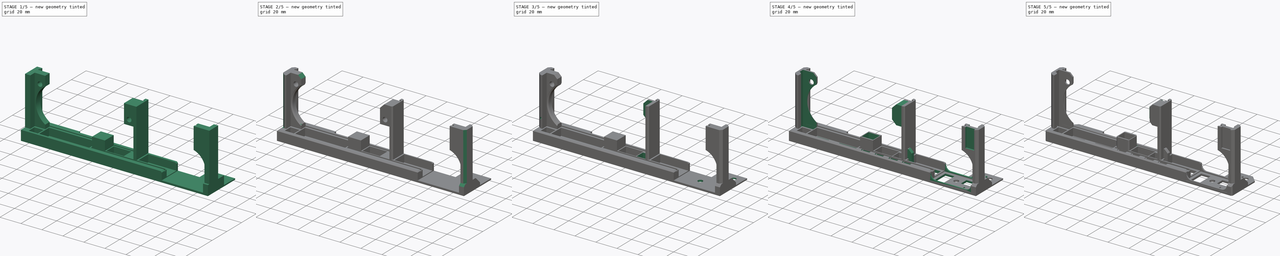
[diagram: build sequence overview — one tinted view per stage of 5, left to right]
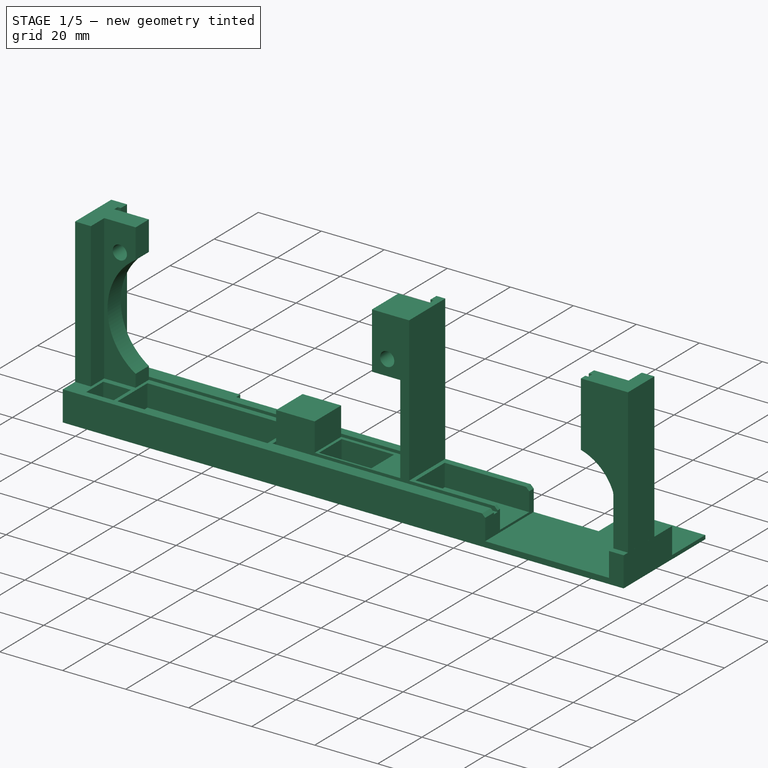
[diagram: stage 1 of 5 — iso view after this stage's code; geometry added in this stage tinted green]
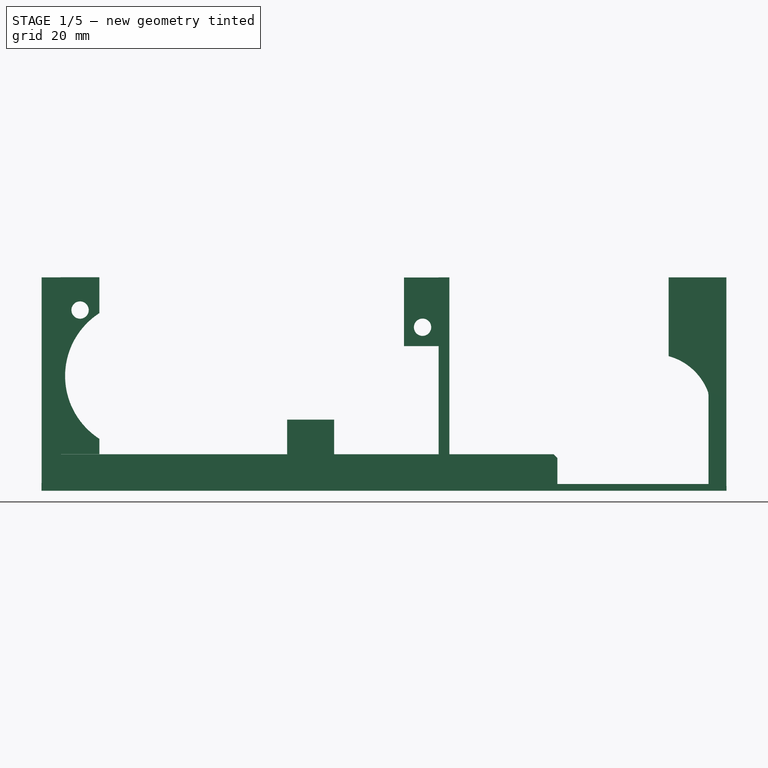
[diagram: stage 1 of 5 — front view after this stage's code; geometry added in this stage tinted green]
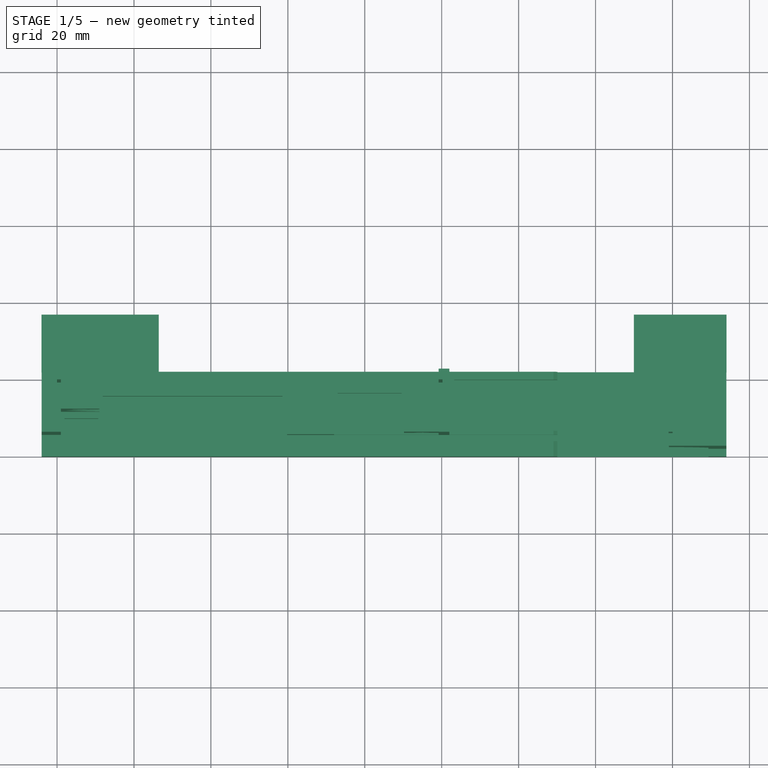
[diagram: stage 1 of 5 — top view after this stage's code; geometry added in this stage tinted green]
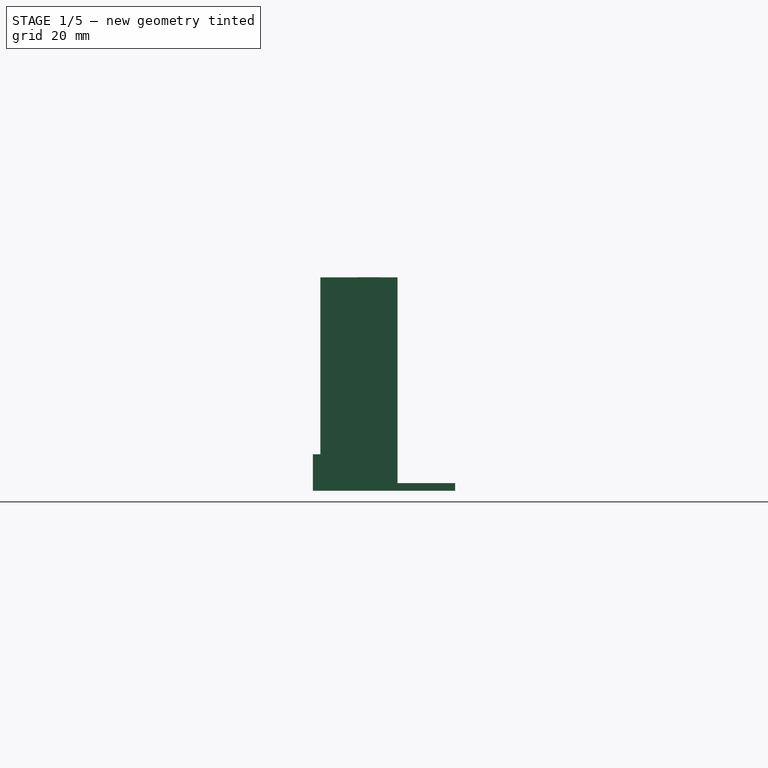
[diagram: stage 1 of 5 — right view after this stage's code; geometry added in this stage tinted green]
FCSTD DOCUMENT  (FreeCAD 0.18R4 (GitTag))
Label: pcb support frame
License: All rights reserved
LicenseURL: http://en.wikipedia.org/wiki/All_rights_reserved
objects: Sketcher::SketchObject×46, PartDesign::Chamfer×41, PartDesign::Pocket×29, PartDesign::Pad×11, PartDesign::Hole×6, PartDesign::Body×1
note: 180 computed .brp shape members not serialized (recipe doc carries the construction recipe); baked Part::Feature solids carry a one-line shape summary decoded from their .brp

FEATURE [Sketcher::SketchObject] Sketch
  MapMode = 5
  Support = -> [XY_Plane]
  sketch-geometry (4):
    g0: LineSegment StartX=-4 StartY=0 StartZ=0 EndX=174 EndY=0 EndZ=0
    g1: LineSegment StartX=174 StartY=0 StartZ=0 EndX=174 EndY=22 EndZ=0
    g2: LineSegment StartX=174 StartY=22 StartZ=0 EndX=-4 EndY=22 EndZ=0
    g3: LineSegment StartX=-4 StartY=22 StartZ=0 EndX=-4 EndY=0 EndZ=0
  constraints (11):
    c: Coincident(g0,g1)
    c: Coincident(g1,g2)
    c: Coincident(g2,g3)
    c: Coincident(g3,g0)
    c: Horizontal(g0)
    c: Horizontal(g2)
    c: Vertical(g1)
    c: Vertical(g3)
    c: Distance(g-1,g2) = 22
    c: DistanceX(g0,g0) = 178
    c: Distance(g-1,g3) = 4
FEATURE [PartDesign::Pad] Pad
  Length = 9.5
  Length2 = 100
  Profile = -> Sketch
  Type = 0
FEATURE [Sketcher::SketchObject] Sketch001
  MapMode = 5
  Placement = pos=(0,0,9.5) rot=(0,0,1;0rad)
  Support = -> [Pad]
  sketch-geometry (8):
    g0: LineSegment StartX=0 StartY=19.22 StartZ=0 EndX=100.2 EndY=19.22 EndZ=0
    g1: LineSegment StartX=100.2 StartY=19.22 StartZ=0 EndX=100.2 EndY=17.6 EndZ=0
    g2: LineSegment StartX=100.2 StartY=17.6 StartZ=0 EndX=0 EndY=17.6 EndZ=0
    g3: LineSegment StartX=0 StartY=17.6 StartZ=0 EndX=0 EndY=19.22 EndZ=0
    g4: LineSegment StartX=159.99 StartY=3.98 StartZ=0 EndX=59.7895 EndY=3.98 EndZ=0
    g5: LineSegment StartX=59.7895 StartY=3.98 StartZ=0 EndX=59.7895 EndY=5.6 EndZ=0
    g6: LineSegment StartX=59.7895 StartY=5.6 StartZ=0 EndX=159.99 EndY=5.6 EndZ=0
    g7: LineSegment StartX=159.99 StartY=5.6 StartZ=0 EndX=159.99 EndY=3.98 EndZ=0
  constraints (23):
    c: Coincident(g0,g1)
    c: Coincident(g1,g2)
    c: Coincident(g2,g3)
    c: Coincident(g3,g0)
    c: Horizontal(g0)
    c: Horizontal(g2)
    c: Vertical(g1)
    c: Vertical(g3)
    c: DistanceX(g0,g0) = 100.2
    c: DistanceX(g-2,g2) = 0
    c: DistanceY(g1,g1) = 1.62
    c: DistanceY(g-1,g2) = 17.6
    c: Coincident(g4,g5)
    c: Coincident(g5,g6)
    c: Coincident(g6,g7)
    c: Coincident(g7,g4)
    c: Horizontal(g4)
    c: Horizontal(g6)
    c: Vertical(g5)
    c: Vertical(g7)
    c: DistanceX(g6,g6) = 100.2
    c: Distance(g5,g2) = 12
    c: DistanceY(g7,g7) = 1.62
FEATURE [PartDesign::Pocket] Pocket
  BaseFeature = -> Pad
  Length = 1.5
  Length2 = 100
  Profile = -> Sketch001
  Type = 0
FEATURE [Sketcher::SketchObject] Sketch002
  MapMode = 5
  Placement = pos=(0,0,9.5) rot=(0,0,1;0rad)
  Support = -> [Pocket]
  sketch-geometry (8):
    g0: LineSegment StartX=-4 StartY=22 StartZ=0 EndX=1 EndY=22 EndZ=0
    g1: LineSegment StartX=1 StartY=22 StartZ=0 EndX=1 EndY=19.22 EndZ=0
    g2: LineSegment StartX=1 StartY=19.22 StartZ=0 EndX=0 EndY=19.22 EndZ=0
    g3: LineSegment StartX=0 StartY=19.22 StartZ=0 EndX=0 EndY=17.6 EndZ=0
    g4: LineSegment StartX=0 StartY=17.6 StartZ=0 EndX=1 EndY=17.6 EndZ=0
    g5: LineSegment StartX=1 StartY=17.6 StartZ=0 EndX=1 EndY=5.6 EndZ=0
    g6: LineSegment StartX=1 StartY=5.6 StartZ=0 EndX=-4 EndY=5.6 EndZ=0
    g7: LineSegment StartX=-4 StartY=5.6 StartZ=0 EndX=-4 EndY=22 EndZ=0
  constraints (23):
    c: Coincident(g2,g1)
    c: Coincident(g4,g5)
    c: Vertical(g1)
    c: DistanceX(g0,g0) = 5
    c: Coincident(g1,g0)
    c: Coincident(g0,g7)
    c: Vertical(g7)
    c: Coincident(g6,g7)
    c: DistanceY(g1,g1) = 2.78
    c: Horizontal(g0)
    c: Horizontal(g2)
    c: Horizontal(g4)
    c: Vertical(g3)
    c: DistanceX(g4,g4) = 1
    c: Coincident(g4,g3)
    c: Coincident(g2,g3)
    c: Vertical(g5)
    c: PointOnObject(g3,g-2)
    c: Coincident(g5,g6)
    c: Horizontal(g6)
    c: Distance(g3) = 1.62
    c: Distance(g5) = 12
    c: Distance(g-1,g0) = 22
FEATURE [PartDesign::Pad] Pad001
  BaseFeature = -> Pocket
  Length = 46
  Length2 = 100
  Profile = -> Sketch002
  Type = 0
FEATURE [Sketcher::SketchObject] Sketch003
  MapMode = 5
  Placement = pos=(0,0,9.5) rot=(0,0,1;0rad)
  Support = -> [Pad001]
  sketch-geometry (8):
    g0: LineSegment StartX=99.2058 StartY=19.22 StartZ=0 EndX=99.2058 EndY=22 EndZ=0
    g1: LineSegment StartX=99.2058 StartY=22 StartZ=0 EndX=102 EndY=22 EndZ=0
    g2: LineSegment StartX=102 StartY=22 StartZ=0 EndX=102 EndY=5.6 EndZ=0
    g3: LineSegment StartX=102 StartY=5.6 StartZ=0 EndX=99.2058 EndY=5.6 EndZ=0
    g4: LineSegment StartX=99.2058 StartY=5.6 StartZ=0 EndX=99.2058 EndY=17.6 EndZ=0
    g5: LineSegment StartX=99.2058 StartY=17.6 StartZ=0 EndX=100.206 EndY=17.6 EndZ=0
    g6: LineSegment StartX=100.206 StartY=17.6 StartZ=0 EndX=100.206 EndY=19.22 EndZ=0
    g7: LineSegment StartX=100.206 StartY=19.22 StartZ=0 EndX=99.2058 EndY=19.22 EndZ=0
  constraints (22):
    c: Coincident(g6,g5)
    c: Horizontal(g5)
    c: Horizontal(g1)
    c: Horizontal(g3)
    c: Coincident(g7,g6)
    c: Coincident(g7,g0)
    c: Vertical(g0)
    c: Horizontal(g7)
    c: Vertical(g6)
    c: Vertical(g2)
    c: Distance(g4) = 12
    c: Distance(g-1,g1) = 22
    c: Distance(g6) = 1.62
    c: Coincident(g1,g0)
    c: Coincident(g1,g2)
    c: Coincident(g4,g5)
    c: Distance(g-1,g5) = 17.6
    c: Distance(g5) = 1
    c: Vertical(g4)
    c: DistanceX(g7,g7) = 1
    c: Coincident(g3,g4)
    c: Coincident(g3,g2)
FEATURE [PartDesign::Pad] Pad002
  BaseFeature = -> Pad001
  Length = 46
  Length2 = 100
  Profile = -> Sketch003
  Type = 0
FEATURE [Sketcher::SketchObject] Sketch004
  MapMode = 5
  Placement = pos=(0,0,9.5) rot=(0,0,1;0rad)
  Support = -> [Pad002]
  sketch-geometry (10):
    g0: LineSegment StartX=159.008 StartY=5.604 StartZ=0 EndX=160.052 EndY=5.604 EndZ=0
    g1: LineSegment StartX=160.052 StartY=5.604 StartZ=0 EndX=160.052 EndY=3.984 EndZ=0
    g2: LineSegment StartX=160.052 StartY=3.984 StartZ=0 EndX=159.073 EndY=3.984 EndZ=0
    g3: LineSegment StartX=159.073 StartY=3.984 StartZ=0 EndX=159.073 EndY=1.9728 EndZ=0
    g4: LineSegment StartX=159.073 StartY=1.9728 StartZ=0 EndX=173.999 EndY=1.9728 EndZ=0
    g5: LineSegment StartX=173.999 StartY=1.9728 StartZ=0 EndX=173.999 EndY=13.9503 EndZ=0
    g6: LineSegment StartX=170.004 StartY=13.9503 StartZ=0 EndX=169.985 EndY=8.00589 EndZ=0
    g7: LineSegment StartX=169.985 StartY=8.00589 StartZ=0 EndX=159.008 EndY=8.00589 EndZ=0
    g8: LineSegment StartX=159.008 StartY=8.00589 StartZ=0 EndX=159.008 EndY=5.604 EndZ=0
    g9: LineSegment StartX=170.004 StartY=13.9503 StartZ=0 EndX=173.999 EndY=13.9503 EndZ=0
  constraints (19):
    c: Coincident(g8,g0)
    c: Horizontal(g0)
    c: Vertical(g8)
    c: Horizontal(g2)
    c: Coincident(g2,g3)
    c: Coincident(g2,g1)
    c: Vertical(g1)
    c: Vertical(g3)
    c: Coincident(g4,g3)
    c: Coincident(g4,g5)
    c: Horizontal(g4)
    c: Vertical(g5)
    c: Horizontal(g7)
    c: Coincident(g7,g8)
    c: Horizontal(g9)
    c: Coincident(g5,g9)
    c: Distance(g1) = 1.62
    c: Coincident(g1,g0)
    c: Coincident(g6,g9)
FEATURE [PartDesign::Pad] Pad003
  BaseFeature = -> Pad002
  Length = 46
  Length2 = 100
  Profile = -> Sketch004
  Type = 0
FEATURE [Sketcher::SketchObject] Sketch005
  MapMode = 5
  Placement = pos=(0,0,9.5) rot=(0,0,1;0rad)
  Support = -> [Pad003]
  sketch-geometry (4):
    g0: LineSegment StartX=59.8076 StartY=5.58298 StartZ=0 EndX=72.0472 EndY=5.58298 EndZ=0
    g1: LineSegment StartX=72.0472 StartY=5.58298 StartZ=0 EndX=72.0472 EndY=17.583 EndZ=0
    g2: LineSegment StartX=72.0472 StartY=17.583 StartZ=0 EndX=59.8076 EndY=17.583 EndZ=0
    g3: LineSegment StartX=59.8076 StartY=17.583 StartZ=0 EndX=59.8076 EndY=5.58298 EndZ=0
  constraints (9):
    c: Coincident(g0,g1)
    c: Coincident(g1,g2)
    c: Coincident(g2,g3)
    c: Coincident(g3,g0)
    c: Horizontal(g0)
    c: Horizontal(g2)
    c: Vertical(g1)
    c: Vertical(g3)
    c: Distance(g1) = 12
FEATURE [PartDesign::Pad] Pad004
  BaseFeature = -> Pad003
  Length = 9
  Length2 = 100
  Profile = -> Sketch005
  Type = 0
FEATURE [Sketcher::SketchObject] Sketch006
  MapMode = 5
  Placement = pos=(1,0,0) rot=(0.57735,0.57735,0.57735;2.0944rad)
  Support = -> [Pad004]
  sketch-geometry (4):
    g0: LineSegment StartX=11.6 StartY=55.5352 StartZ=0 EndX=17.6 EndY=55.5352 EndZ=0
    g1: LineSegment StartX=17.6 StartY=55.5352 StartZ=0 EndX=17.6 EndY=9.53522 EndZ=0
    g2: LineSegment StartX=17.6 StartY=9.53522 StartZ=0 EndX=11.6 EndY=9.53522 EndZ=0
    g3: LineSegment StartX=11.6 StartY=9.53522 StartZ=0 EndX=11.6 EndY=55.5352 EndZ=0
  constraints (11):
    c: Coincident(g0,g1)
    c: Coincident(g1,g2)
    c: Coincident(g2,g3)
    c: Coincident(g3,g0)
    c: Horizontal(g0)
    c: Horizontal(g2)
    c: Vertical(g1)
    c: Vertical(g3)
    c: DistanceY(g1,g1) = 46
    c: DistanceX(g0,g0) = 6
    c: DistanceX(g-2,g0) = 17.6
FEATURE [PartDesign::Pad] Pad005
  BaseFeature = -> Pad004
  Length = 10
  Length2 = 100
  Profile = -> Sketch006
  Type = 0
FEATURE [Sketcher::SketchObject] Sketch007
  MapMode = 5
  Placement = pos=(0,11.6,0) rot=(1,0,0;1.5708rad)
  Support = -> [Pad005]
  sketch-geometry (1):
    g0: Circle CenterX=21.5245 CenterY=29.8543 CenterZ=0 NormalX=0 NormalY=0 NormalZ=1 AngleXU=0 Radius=19.4349
FEATURE [PartDesign::Pocket] Pocket001
  BaseFeature = -> Pad005
  Length = 5
  Length2 = 100
  Profile = -> Sketch007
  Type = 1
FEATURE [Sketcher::SketchObject] Sketch008
  MapMode = 5
  Placement = pos=(99.2058,0,0) rot=(0.57735,-0.57735,-0.57735;2.0944rad)
  Support = -> [Pocket001]
  sketch-geometry (4):
    g0: LineSegment StartX=-17.627 StartY=55.4701 StartZ=0 EndX=-5.62204 EndY=55.4701 EndZ=0
    g1: LineSegment StartX=-5.62204 StartY=55.4701 StartZ=0 EndX=-5.62204 EndY=37.6164 EndZ=0
    g2: LineSegment StartX=-5.62204 StartY=37.6164 StartZ=0 EndX=-17.627 EndY=37.6164 EndZ=0
    g3: LineSegment StartX=-17.627 StartY=37.6164 StartZ=0 EndX=-17.627 EndY=55.4701 EndZ=0
  constraints (8):
    c: Coincident(g0,g1)
    c: Coincident(g1,g2)
    c: Coincident(g2,g3)
    c: Coincident(g3,g0)
    c: Horizontal(g0)
    c: Horizontal(g2)
    c: Vertical(g1)
    c: Vertical(g3)
FEATURE [PartDesign::Pad] Pad006
  BaseFeature = -> Pocket001
  Length = 9
  Length2 = 100
  Profile = -> Sketch008
  Type = 0
FEATURE [Sketcher::SketchObject] Sketch009
  MapMode = 5
  Placement = pos=(0,8.00589,0) rot=(0,0.707107,0.707107;3.14159rad)
  Support = -> [Pad006]
  sketch-geometry (4):
    g0: LineSegment StartX=-169.309 StartY=10.1238 StartZ=0 EndX=-169.309 EndY=25.4938 EndZ=0
    g1: ArcOfCircle CenterX=-155.061 CenterY=20.3916 CenterZ=0 NormalX=0 NormalY=0 NormalZ=1 AngleXU=0 Radius=15.1342 StartAngle=1.79843 EndAngle=2.79773
    g2: LineSegment StartX=-169.309 StartY=10.1238 StartZ=0 EndX=-154.878 EndY=10.0756 EndZ=0
    g3: LineSegment StartX=-154.878 StartY=10.0756 StartZ=0 EndX=-158.476 EndY=35.1354 EndZ=0
  constraints (5):
    c: Vertical(g0)
    c: Coincident(g1,g0)
    c: Coincident(g3,g1)
    c: Coincident(g3,g2)
    c: Coincident(g0,g2)
FEATURE [PartDesign::Pocket] Pocket002
  BaseFeature = -> Pad006
  Length = 5
  Length2 = 100
  Profile = -> Sketch009
  Type = 1
FEATURE [Sketcher::SketchObject] Sketch010
  MapMode = 5
  Placement = pos=(0,22,0) rot=(0,0.707107,0.707107;3.14159rad)
  Support = -> [Pocket002]
  sketch-geometry (8):
    g0: LineSegment StartX=-174.03 StartY=-0.001355 StartZ=0 EndX=-149.948 EndY=-0.001355 EndZ=0
    g1: LineSegment StartX=-149.948 StartY=-0.001355 StartZ=0 EndX=-149.948 EndY=1.18861 EndZ=0
    g2: LineSegment StartX=-149.948 StartY=1.18861 StartZ=0 EndX=-174.03 EndY=1.18861 EndZ=0
    g3: LineSegment StartX=-174.03 StartY=1.18861 StartZ=0 EndX=-174.03 EndY=-0.001355 EndZ=0
    g4: LineSegment StartX=4.03201 StartY=0.007445 StartZ=0 EndX=-26.4254 EndY=0.007445 EndZ=0
    g5: LineSegment StartX=-26.4254 StartY=0.007445 StartZ=0 EndX=-26.4254 EndY=1.99072 EndZ=0
    g6: LineSegment StartX=-26.4254 StartY=1.99072 StartZ=0 EndX=4.03201 EndY=1.99072 EndZ=0
    g7: LineSegment StartX=4.03201 StartY=1.99072 StartZ=0 EndX=4.03201 EndY=0.007445 EndZ=0
  constraints (16):
    c: Coincident(g0,g1)
    c: Coincident(g1,g2)
    c: Coincident(g2,g3)
    c: Coincident(g3,g0)
    c: Horizontal(g0)
    c: Horizontal(g2)
    c: Vertical(g1)
    c: Vertical(g3)
    c: Coincident(g4,g5)
    c: Coincident(g5,g6)
    c: Coincident(g6,g7)
    c: Coincident(g7,g4)
    c: Horizontal(g4)
    c: Horizontal(g6)
    c: Vertical(g5)
    c: Vertical(g7)
FEATURE [PartDesign::Pad] Pad007
  BaseFeature = -> Pocket002
  Length = 15
  Length2 = 100
  Profile = -> Sketch010
  Type = 0
FEATURE [Sketcher::SketchObject] Sketch011
  MapMode = 5
  Placement = pos=(0,0,9.5) rot=(0,0,1;0rad)
  Support = -> [Pad007]
  sketch-geometry (20):
    g0: LineSegment StartX=11.8707 StartY=15.6997 StartZ=0 EndX=58.5974 EndY=15.6997 EndZ=0
    g1: LineSegment StartX=58.5974 StartY=15.6997 StartZ=0 EndX=58.5974 EndY=2.09557 EndZ=0
    g2: LineSegment StartX=58.5974 StartY=2.09557 StartZ=0 EndX=11.8707 EndY=2.09557 EndZ=0
    g3: LineSegment StartX=11.8707 StartY=2.09557 StartZ=0 EndX=11.8707 EndY=15.6997 EndZ=0
    g4: LineSegment StartX=103.269 StartY=19.9381 StartZ=0 EndX=156.078 EndY=19.9381 EndZ=0
    g5: LineSegment StartX=156.078 StartY=19.9381 StartZ=0 EndX=156.078 EndY=6.68145 EndZ=0
    g6: LineSegment StartX=156.078 StartY=6.68145 StartZ=0 EndX=103.269 EndY=6.68145 EndZ=0
    g7: LineSegment StartX=103.269 StartY=6.68145 StartZ=0 EndX=103.269 EndY=19.9381 EndZ=0
    g8: LineSegment StartX=157.44 StartY=19.9627 StartZ=0 EndX=168.853 EndY=19.9627 EndZ=0
    g9: LineSegment StartX=168.853 StartY=19.9627 StartZ=0 EndX=168.853 EndY=9.11723 EndZ=0
    g10: LineSegment StartX=168.853 StartY=9.11723 StartZ=0 EndX=157.44 EndY=9.11723 EndZ=0
    g11: LineSegment StartX=157.44 StartY=9.11723 StartZ=0 EndX=157.44 EndY=19.9627 EndZ=0
    g12: LineSegment StartX=1.94575 StartY=9.87389 StartZ=0 EndX=10.7104 EndY=9.87389 EndZ=0
    g13: LineSegment StartX=10.7104 StartY=9.87389 StartZ=0 EndX=10.7104 EndY=2.1181 EndZ=0
    g14: LineSegment StartX=10.7104 StartY=2.1181 StartZ=0 EndX=1.94575 EndY=2.1181 EndZ=0
    g15: LineSegment StartX=1.94575 StartY=2.1181 StartZ=0 EndX=1.94575 EndY=9.87389 EndZ=0
    g16: LineSegment StartX=72.9459 StartY=16.4947 StartZ=0 EndX=89.5924 EndY=16.4947 EndZ=0
    g17: LineSegment StartX=89.5924 StartY=16.4947 StartZ=0 EndX=89.5924 EndY=6.21669 EndZ=0
    g18: LineSegment StartX=89.5924 StartY=6.21669 StartZ=0 EndX=72.9459 EndY=6.21669 EndZ=0
    g19: LineSegment StartX=72.9459 StartY=6.21669 StartZ=0 EndX=72.9459 EndY=16.4947 EndZ=0
  constraints (40):
    c: Coincident(g0,g1)
    c: Coincident(g1,g2)
    c: Coincident(g2,g3)
    c: Coincident(g3,g0)
    c: Horizontal(g0)
    c: Horizontal(g2)
    c: Vertical(g1)
    c: Vertical(g3)
    c: Coincident(g4,g5)
    c: Coincident(g5,g6)
    c: Coincident(g6,g7)
    c: Coincident(g7,g4)
    c: Horizontal(g4)
    c: Horizontal(g6)
    c: Vertical(g5)
    c: Vertical(g7)
    c: Coincident(g8,g9)
    c: Coincident(g9,g10)
    c: Coincident(g10,g11)
    c: Coincident(g11,g8)
    c: Horizontal(g8)
    c: Horizontal(g10)
    c: Vertical(g9)
    c: Vertical(g11)
    c: Coincident(g12,g13)
    c: Coincident(g13,g14)
    c: Coincident(g14,g15)
    c: Coincident(g15,g12)
    c: Horizontal(g12)
    c: Horizontal(g14)
    c: Vertical(g13)
    c: Vertical(g15)
    c: Coincident(g16,g17)
    c: Coincident(g17,g18)
    c: Coincident(g18,g19)
    c: Coincident(g19,g16)
    c: Horizontal(g16)
    c: Horizontal(g18)
    c: Vertical(g17)
    c: Vertical(g19)
FEATURE [PartDesign::Pocket] Pocket003
  BaseFeature = -> Pad007
  Length = 7
  Length2 = 100
  Profile = -> Sketch011
  Type = 0
FEATURE [Sketcher::SketchObject] Sketch013
  MapMode = 5
  Placement = pos=(0,5.62204,0) rot=(1,0,0;1.5708rad)
  sketch-geometry (1):
    g0: Circle CenterX=95.0205 CenterY=42.5219 CenterZ=0 NormalX=0 NormalY=0 NormalZ=1 AngleXU=0 Radius=2.45402
FEATURE [PartDesign::Hole] Hole001
  BaseFeature = -> Pocket003
  Depth = 25
  DepthType = 0
  Diameter = 4.5
  DrillPoint = 1
  DrillPointAngle = 118
  HoleCutCountersinkAngle = 90
  HoleCutDepth = 0
  HoleCutDiameter = 0
  HoleCutType = 0
  ModelActualThread = false
  Profile = -> Sketch013
  Tapered = false
  TaperedAngle = 90
  ThreadAngle = 0
  ThreadClass = 0
  ThreadCutOffInner = 0
  ThreadCutOffOuter = 0
  ThreadDirection = 0
  ThreadFit = 0
  ThreadPitch = 0
  ThreadSize = 0
  ThreadType = 0
  Threaded = false
FEATURE [Sketcher::SketchObject] Sketch014
  MapMode = 5
  Placement = pos=(0,11.6,0) rot=(1,0,0;1.5708rad)
  Support = -> [Hole001]
  sketch-geometry (1):
    g0: Circle CenterX=5.98264 CenterY=46.9885 CenterZ=0 NormalX=0 NormalY=0 NormalZ=1 AngleXU=0 Radius=2.336
FEATURE [PartDesign::Hole] Hole
  BaseFeature = -> Hole001
  Depth = 25
  DepthType = 0
  Diameter = 4.5
  DrillPoint = 1
  DrillPointAngle = 118
  HoleCutCountersinkAngle = 90
  HoleCutDepth = 0
  HoleCutDiameter = 0
  HoleCutType = 0
  ModelActualThread = false
  Profile = -> Sketch014
  Tapered = false
  TaperedAngle = 90
  ThreadAngle = 0
  ThreadClass = 0
  ThreadCutOffInner = 0
  ThreadCutOffOuter = 0
  ThreadDirection = 0
  ThreadFit = 0
  ThreadPitch = 0
  ThreadSize = 0
  ThreadType = 0
  Threaded = false
FEATURE [Sketcher::SketchObject] Sketch015
  MapMode = 5
  Placement = pos=(0,0,0) rot=(1,0,0;1.5708rad)
  Support = -> [Hole]
  sketch-geometry (4):
    g0: LineSegment StartX=169.355 StartY=25.1113 StartZ=0 EndX=130.071 EndY=25.1113 EndZ=0
    g1: LineSegment StartX=130.071 StartY=25.1113 StartZ=0 EndX=130.071 EndY=1.78091 EndZ=0
    g2: LineSegment StartX=130.071 StartY=1.78091 StartZ=0 EndX=169.355 EndY=1.78091 EndZ=0
    g3: LineSegment StartX=169.355 StartY=1.78091 StartZ=0 EndX=169.355 EndY=25.1113 EndZ=0
  constraints (8):
    c: Coincident(g0,g1)
    c: Coincident(g1,g2)
    c: Coincident(g2,g3)
    c: Coincident(g3,g0)
    c: Horizontal(g0)
    c: Horizontal(g2)
    c: Vertical(g1)
    c: Vertical(g3)
FEATURE [PartDesign::Pocket] Pocket004
  BaseFeature = -> Hole
  Length = 5
  Length2 = 100
  Profile = -> Sketch015
  Type = 1
FEATURE [PartDesign::Chamfer] Chamfer
  Base = -> Pocket004 [Edge32]
  BaseFeature = -> Pocket004
  Size = 1
FEATURE [PartDesign::Chamfer] Chamfer001
  Base = -> Chamfer [Edge7,Edge10]
  BaseFeature = -> Chamfer
  Size = 1
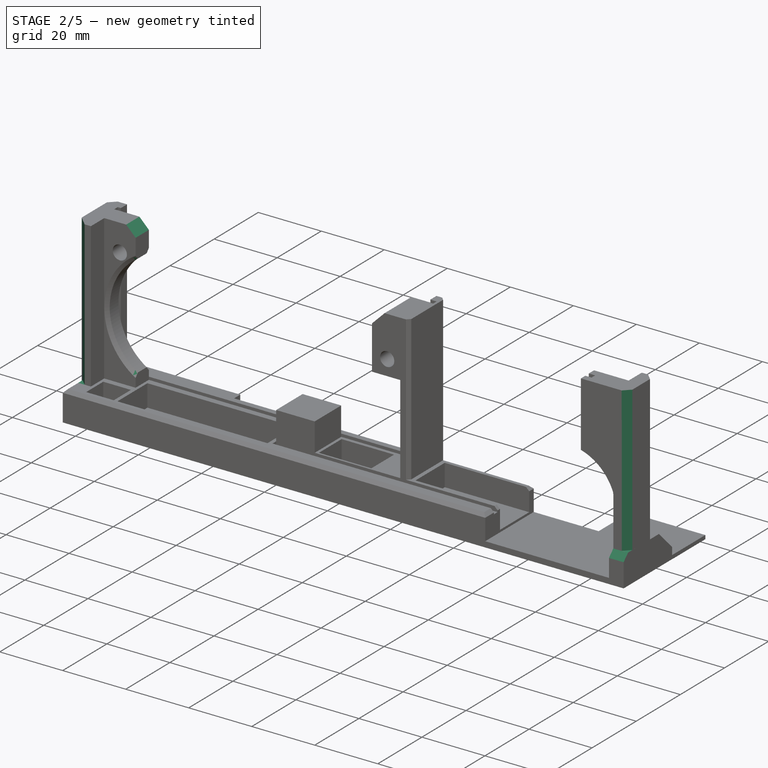
[diagram: stage 2 of 5 — iso view after this stage's code; geometry added in this stage tinted green]
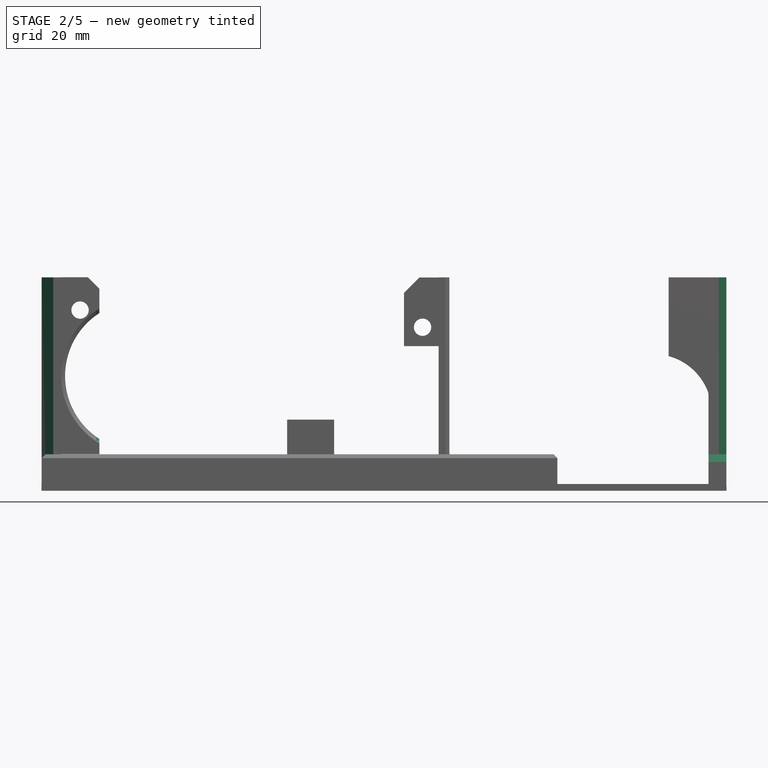
[diagram: stage 2 of 5 — front view after this stage's code; geometry added in this stage tinted green]
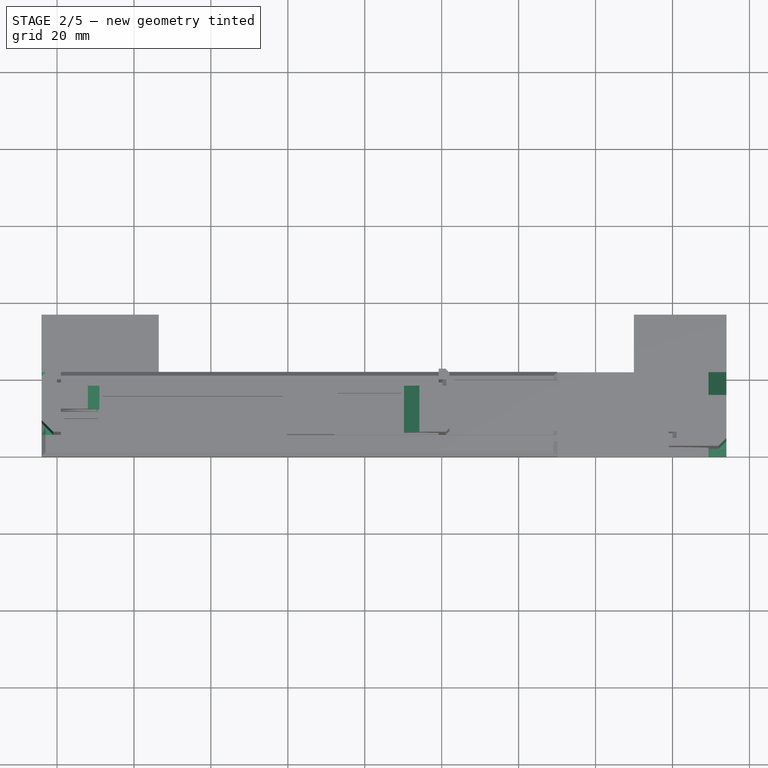
[diagram: stage 2 of 5 — top view after this stage's code; geometry added in this stage tinted green]
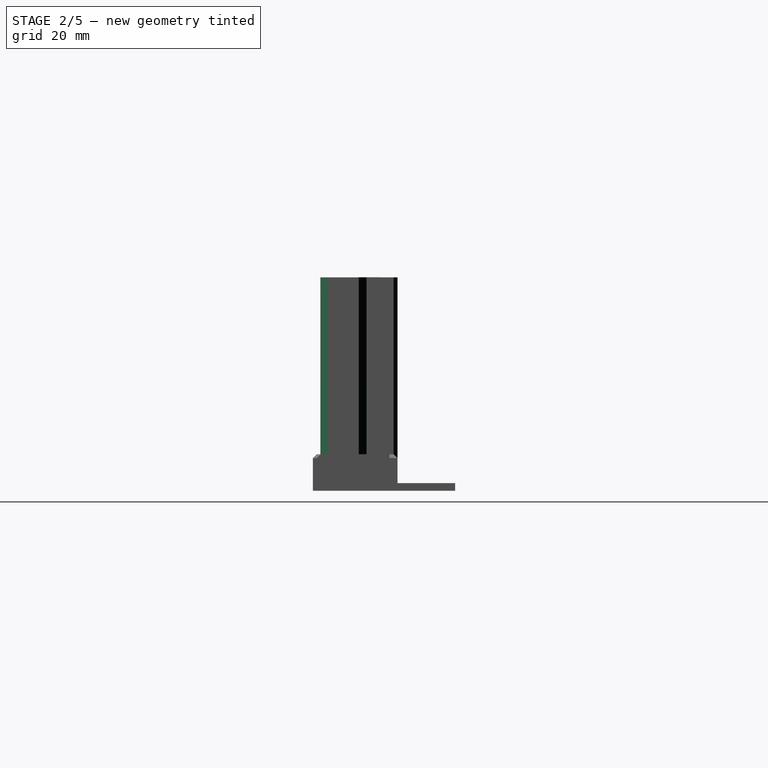
[diagram: stage 2 of 5 — right view after this stage's code; geometry added in this stage tinted green]
FEATURE [PartDesign::Chamfer] Chamfer002
  Base = -> Chamfer001 [Edge210]
  BaseFeature = -> Chamfer001
  Size = 1
FEATURE [PartDesign::Chamfer] Chamfer003
  Base = -> Chamfer002 [Edge282]
  BaseFeature = -> Chamfer002
  Size = 1
FEATURE [PartDesign::Chamfer] Chamfer004
  Base = -> Chamfer003 [Edge47]
  BaseFeature = -> Chamfer003
  Size = 6
FEATURE [PartDesign::Chamfer] Chamfer005
  Base = -> Chamfer004 [Edge6]
  BaseFeature = -> Chamfer004
  Size = 2
FEATURE [PartDesign::Chamfer] Chamfer006
  Base = -> Chamfer005 [Edge284]
  BaseFeature = -> Chamfer005
  Size = 4
FEATURE [PartDesign::Chamfer] Chamfer007
  Base = -> Chamfer006 [Edge189]
  BaseFeature = -> Chamfer006
  Size = 1
FEATURE [PartDesign::Chamfer] Chamfer008
  Base = -> Chamfer007 [Edge34]
  BaseFeature = -> Chamfer007
  Size = 1
FEATURE [PartDesign::Chamfer] Chamfer009
  Base = -> Chamfer008 [Edge114]
  BaseFeature = -> Chamfer008
  Size = 1
FEATURE [PartDesign::Chamfer] Chamfer010
  Base = -> Chamfer009 [Edge256]
  BaseFeature = -> Chamfer009
  Size = 2
FEATURE [PartDesign::Chamfer] Chamfer011
  Base = -> Chamfer010 [Edge174]
  BaseFeature = -> Chamfer010
  Size = 3
FEATURE [PartDesign::Chamfer] Chamfer012
  Base = -> Chamfer011 [Edge39]
  BaseFeature = -> Chamfer011
  Size = 2
FEATURE [PartDesign::Chamfer] Chamfer013
  Base = -> Chamfer012 [Edge22]
  BaseFeature = -> Chamfer012
  Size = 1
FEATURE [PartDesign::Chamfer] Chamfer014
  Base = -> Chamfer013 [Edge329]
  BaseFeature = -> Chamfer013
  Size = 2
FEATURE [PartDesign::Chamfer] Chamfer015
  Base = -> Chamfer014 [Edge142]
  BaseFeature = -> Chamfer014
  Size = 1
FEATURE [PartDesign::Chamfer] Chamfer016
  Base = -> Chamfer015 [Edge191]
  BaseFeature = -> Chamfer015
  Size = 1
FEATURE [PartDesign::Chamfer] Chamfer017
  Base = -> Chamfer016 [Edge311]
  BaseFeature = -> Chamfer016
  Size = 1
FEATURE [PartDesign::Chamfer] Chamfer018
  Base = -> Chamfer017 [Edge30]
  BaseFeature = -> Chamfer017
  Size = 1
FEATURE [PartDesign::Chamfer] Chamfer019
  Base = -> Chamfer018 [Edge6]
  BaseFeature = -> Chamfer018
  Size = 3
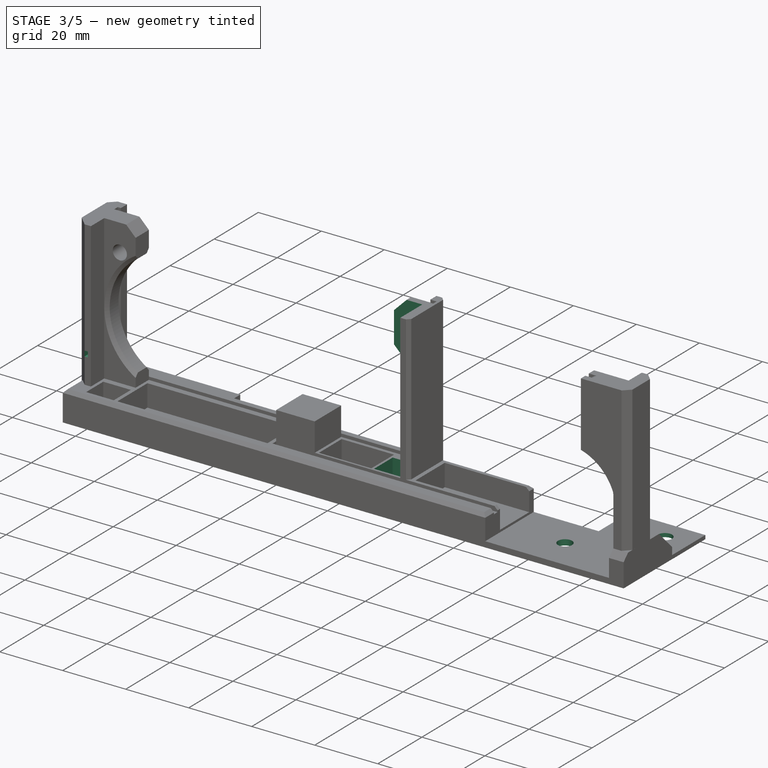
[diagram: stage 3 of 5 — iso view after this stage's code; geometry added in this stage tinted green]
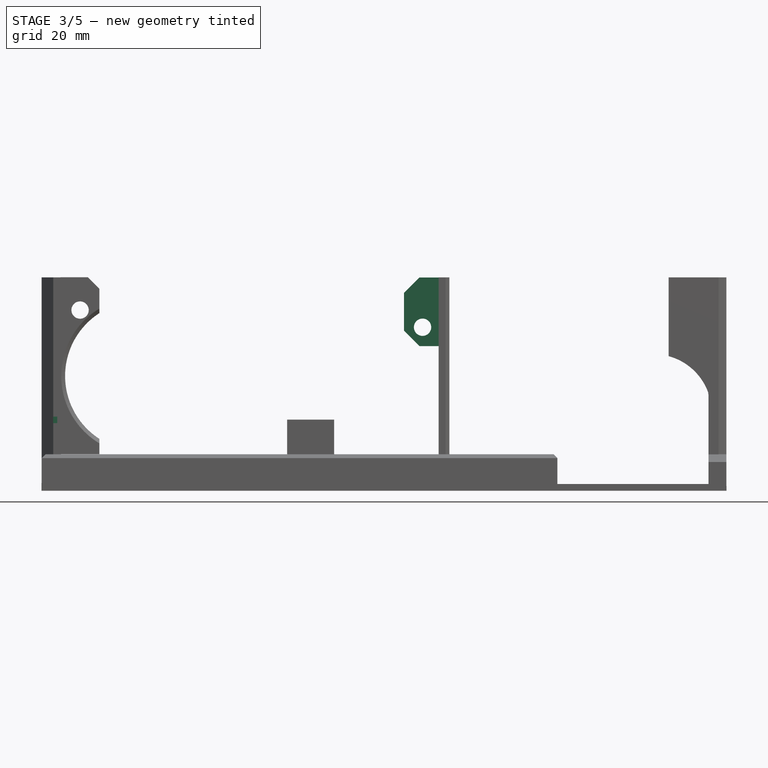
[diagram: stage 3 of 5 — front view after this stage's code; geometry added in this stage tinted green]
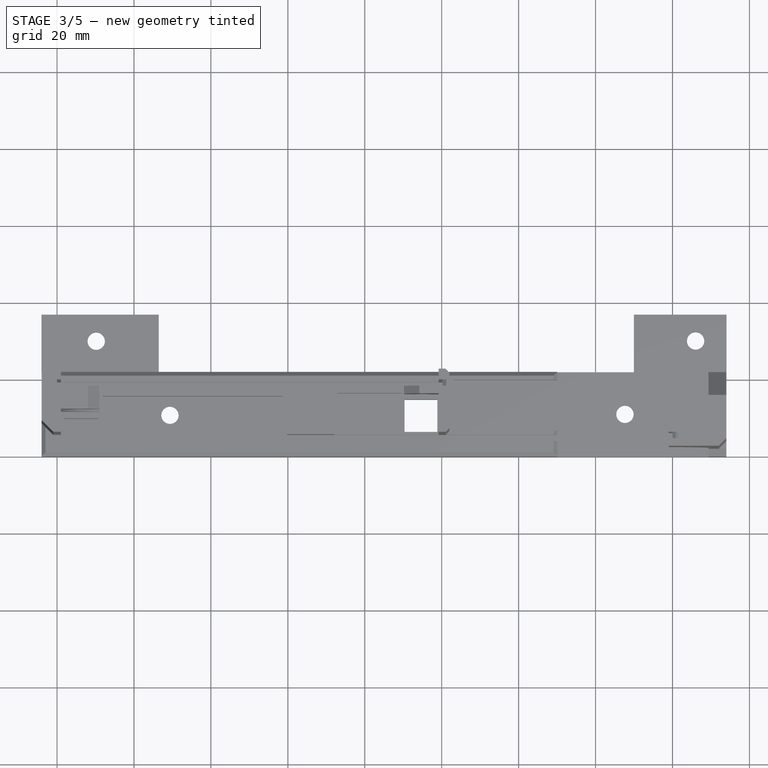
[diagram: stage 3 of 5 — top view after this stage's code; geometry added in this stage tinted green]
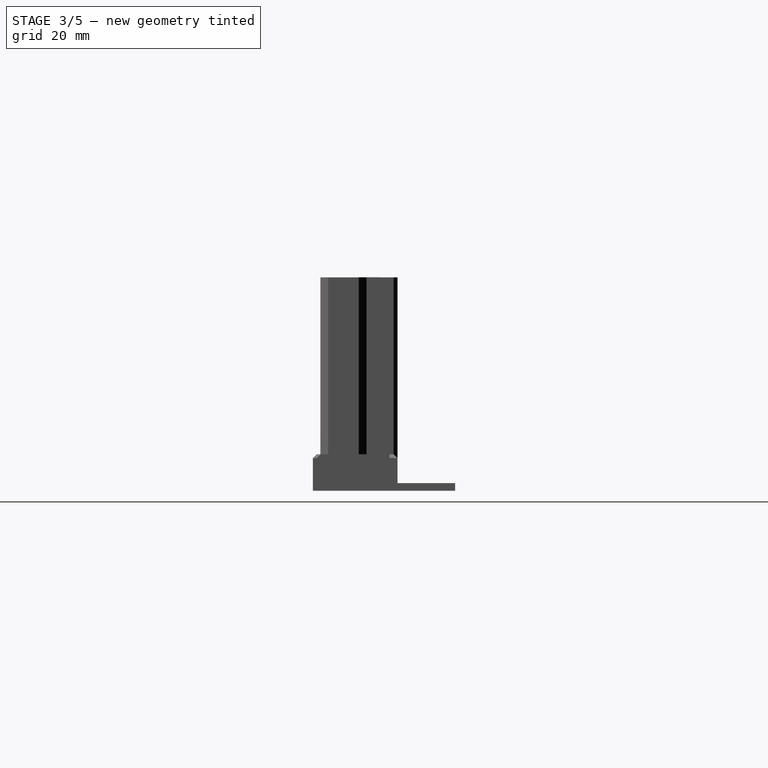
[diagram: stage 3 of 5 — right view after this stage's code; geometry added in this stage tinted green]
FEATURE [Sketcher::SketchObject] Sketch016
  MapMode = 5
  Placement = pos=(0,3e-16,1.18861) rot=(0,0,1;0rad)
  Support = -> [Chamfer019]
  sketch-geometry (1):
    g0: Circle CenterX=166.013 CenterY=30.1508 CenterZ=0 NormalX=0 NormalY=0 NormalZ=1 AngleXU=0 Radius=3.28432
FEATURE [PartDesign::Hole] Hole002
  BaseFeature = -> Chamfer019
  Depth = 25
  DepthType = 0
  Diameter = 4.5
  DrillPoint = 1
  DrillPointAngle = 118
  HoleCutCountersinkAngle = 90
  HoleCutDepth = 0
  HoleCutDiameter = 0
  HoleCutType = 0
  ModelActualThread = false
  Profile = -> Sketch016
  Tapered = false
  TaperedAngle = 90
  ThreadAngle = 0
  ThreadClass = 0
  ThreadCutOffInner = 0
  ThreadCutOffOuter = 0
  ThreadDirection = 0
  ThreadFit = 0
  ThreadPitch = 0
  ThreadSize = 0
  ThreadType = 0
  Threaded = false
FEATURE [Sketcher::SketchObject] Sketch017
  MapMode = 5
  Placement = pos=(0,4e-16,1.99072) rot=(0,0,1;0rad)
  Support = -> [Hole002]
  sketch-geometry (1):
    g0: Circle CenterX=10.184 CenterY=30.0856 CenterZ=0 NormalX=0 NormalY=0 NormalZ=1 AngleXU=0 Radius=3.83031
FEATURE [PartDesign::Hole] Hole003
  BaseFeature = -> Hole002
  Depth = 25
  DepthType = 0
  Diameter = 4.5
  DrillPoint = 1
  DrillPointAngle = 118
  HoleCutCountersinkAngle = 90
  HoleCutDepth = 0
  HoleCutDiameter = 0
  HoleCutType = 0
  ModelActualThread = false
  Profile = -> Sketch017
  Tapered = false
  TaperedAngle = 90
  ThreadAngle = 0
  ThreadClass = 0
  ThreadCutOffInner = 0
  ThreadCutOffOuter = 0
  ThreadDirection = 0
  ThreadFit = 0
  ThreadPitch = 0
  ThreadSize = 0
  ThreadType = 0
  Threaded = false
FEATURE [Sketcher::SketchObject] Sketch018
  MapMode = 5
  Placement = pos=(0,4e-16,1.78091) rot=(0,0,1;0rad)
  Support = -> [Hole003]
  sketch-geometry (1):
    g0: Circle CenterX=147.643 CenterY=11.075 CenterZ=0 NormalX=0 NormalY=0 NormalZ=1 AngleXU=0 Radius=2.03542
FEATURE [PartDesign::Hole] Hole004
  BaseFeature = -> Hole003
  Depth = 25
  DepthType = 0
  Diameter = 4.5
  DrillPoint = 1
  DrillPointAngle = 118
  HoleCutCountersinkAngle = 90
  HoleCutDepth = 0
  HoleCutDiameter = 0
  HoleCutType = 0
  ModelActualThread = false
  Profile = -> Sketch018
  Tapered = false
  TaperedAngle = 90
  ThreadAngle = 0
  ThreadClass = 0
  ThreadCutOffInner = 0
  ThreadCutOffOuter = 0
  ThreadDirection = 0
  ThreadFit = 0
  ThreadPitch = 0
  ThreadSize = 0
  ThreadType = 0
  Threaded = false
FEATURE [Sketcher::SketchObject] Sketch019
  MapMode = 5
  Placement = pos=(0,0,2.5) rot=(0,0,1;0rad)
  Support = -> [Hole004]
  sketch-geometry (1):
    g0: Circle CenterX=29.3519 CenterY=10.8227 CenterZ=0 NormalX=0 NormalY=0 NormalZ=1 AngleXU=0 Radius=2.76366
FEATURE [PartDesign::Hole] Hole005
  BaseFeature = -> Hole004
  Depth = 25
  DepthType = 0
  Diameter = 4.5
  DrillPoint = 1
  DrillPointAngle = 118
  HoleCutCountersinkAngle = 90
  HoleCutDepth = 0
  HoleCutDiameter = 0
  HoleCutType = 0
  ModelActualThread = false
  Profile = -> Sketch019
  Tapered = false
  TaperedAngle = 90
  ThreadAngle = 0
  ThreadClass = 0
  ThreadCutOffInner = 0
  ThreadCutOffOuter = 0
  ThreadDirection = 0
  ThreadFit = 0
  ThreadPitch = 0
  ThreadSize = 0
  ThreadType = 0
  Threaded = false
FEATURE [PartDesign::Chamfer] Chamfer020
  Base = -> Hole005 [Edge226]
  BaseFeature = -> Hole005
  Size = 4
FEATURE [Sketcher::SketchObject] Sketch021
  MapMode = 5
  Placement = pos=(0,5.62204,0) rot=(1,0,0;1.5708rad)
  sketch-geometry (4):
    g0: LineSegment StartX=99.1983 StartY=55.838 StartZ=0 EndX=89.9296 EndY=55.838 EndZ=0
    g1: LineSegment StartX=89.9296 StartY=55.838 StartZ=0 EndX=89.9296 EndY=35 EndZ=0
    g2: LineSegment StartX=89.9296 StartY=35 StartZ=0 EndX=99.1983 EndY=35 EndZ=0
    g3: LineSegment StartX=99.1983 StartY=35 StartZ=0 EndX=99.1983 EndY=55.838 EndZ=0
  constraints (8):
    c: Coincident(g0,g1)
    c: Coincident(g1,g2)
    c: Coincident(g2,g3)
    c: Coincident(g3,g0)
    c: Horizontal(g0)
    c: Horizontal(g2)
    c: Vertical(g1)
    c: Vertical(g3)
FEATURE [PartDesign::Pocket] Pocket006
  BaseFeature = -> Chamfer020
  Length = 10
  Length2 = 100
  Profile = -> Sketch021
  Type = 0
FEATURE [Sketcher::SketchObject] Sketch022
  MapMode = 5
  Placement = pos=(0,0,9.5) rot=(0,0,1;0rad)
  Support = -> [Pocket006]
  sketch-geometry (4):
    g0: LineSegment StartX=90.3265 StartY=14.8217 StartZ=0 EndX=98.8866 EndY=14.8217 EndZ=0
    g1: LineSegment StartX=98.8866 StartY=14.8217 StartZ=0 EndX=98.8866 EndY=6.35567 EndZ=0
    g2: LineSegment StartX=98.8866 StartY=6.35567 StartZ=0 EndX=90.3265 EndY=6.35567 EndZ=0
    g3: LineSegment StartX=90.3265 StartY=6.35567 StartZ=0 EndX=90.3265 EndY=14.8217 EndZ=0
  constraints (8):
    c: Coincident(g0,g1)
    c: Coincident(g1,g2)
    c: Coincident(g2,g3)
    c: Coincident(g3,g0)
    c: Horizontal(g0)
    c: Horizontal(g2)
    c: Vertical(g1)
    c: Vertical(g3)
FEATURE [PartDesign::Pocket] Pocket007
  BaseFeature = -> Pocket006
  Length = 8
  Length2 = 100
  Profile = -> Sketch022
  Type = 1
FEATURE [Sketcher::SketchObject] Sketch023
  MapMode = 5
  Placement = pos=(0,0,2.5) rot=(0,0,1;0rad)
  Support = -> [Pocket007]
  sketch-geometry (4):
    g0: LineSegment StartX=60.602 StartY=16 StartZ=0 EndX=71.3967 EndY=16 EndZ=0
    g1: LineSegment StartX=71.3967 StartY=16 StartZ=0 EndX=71.3967 EndY=6.79727 EndZ=0
    g2: LineSegment StartX=71.3967 StartY=6.79727 StartZ=0 EndX=60.602 EndY=6.79727 EndZ=0
    g3: LineSegment StartX=60.602 StartY=6.79727 StartZ=0 EndX=60.602 EndY=16 EndZ=0
  constraints (8):
    c: Coincident(g0,g1)
    c: Coincident(g1,g2)
    c: Coincident(g2,g3)
    c: Coincident(g3,g0)
    c: Horizontal(g0)
    c: Horizontal(g2)
    c: Vertical(g1)
    c: Vertical(g3)
FEATURE [PartDesign::Pocket] Pocket008
  BaseFeature = -> Pocket007
  Length = 5
  Length2 = 100
  Profile = -> Sketch023
  Type = 1
FEATURE [Sketcher::SketchObject] Sketch024
  MapMode = 5
  Placement = pos=(0,13.9503,0) rot=(0,0.707107,0.707107;3.14159rad)
  Support = -> [Pocket008]
  sketch-geometry (8):
    g0: LineSegment StartX=162.57 StartY=-3.61549 StartZ=0 EndX=170.942 EndY=-3.61549 EndZ=0
    g1: LineSegment StartX=170.942 StartY=-3.61549 StartZ=0 EndX=170.942 EndY=3.43956 EndZ=0
    g2: LineSegment StartX=170.942 StartY=3.43956 StartZ=0 EndX=162.57 EndY=3.43956 EndZ=0
    g3: LineSegment StartX=162.57 StartY=3.43956 StartZ=0 EndX=162.57 EndY=-3.61549 EndZ=0
    g4: LineSegment StartX=162.57 StartY=8.98954 StartZ=0 EndX=170.848 EndY=8.98954 EndZ=0
    g5: LineSegment StartX=170.848 StartY=8.98954 StartZ=0 EndX=170.848 EndY=6.16751 EndZ=0
    g6: LineSegment StartX=170.848 StartY=6.16751 StartZ=0 EndX=162.57 EndY=6.16751 EndZ=0
    g7: LineSegment StartX=162.57 StartY=6.16751 StartZ=0 EndX=162.57 EndY=8.98954 EndZ=0
  constraints (16):
    c: Coincident(g0,g1)
    c: Coincident(g1,g2)
    c: Coincident(g2,g3)
    c: Coincident(g3,g0)
    c: Horizontal(g0)
    c: Horizontal(g2)
    c: Vertical(g1)
    c: Vertical(g3)
    c: Coincident(g4,g5)
    c: Coincident(g5,g6)
    c: Coincident(g6,g7)
    c: Coincident(g7,g4)
    c: Horizontal(g4)
    c: Horizontal(g6)
    c: Vertical(g5)
    c: Vertical(g7)
FEATURE [PartDesign::Pocket] Pocket009
  BaseFeature = -> Pocket008
  Length = 18
  Length2 = 100
  Profile = -> Sketch024
  Type = 0
FEATURE [Sketcher::SketchObject] Sketch025
  MapMode = 5
  Placement = pos=(0,4e-16,1.78091) rot=(0,0,1;0rad)
  Support = -> [Pocket009]
  sketch-geometry (4):
    g0: LineSegment StartX=-1.95366 StartY=16.2327 StartZ=0 EndX=7.64121 EndY=16.2327 EndZ=0
    g1: LineSegment StartX=7.64121 StartY=16.2327 StartZ=0 EndX=7.64121 EndY=13.1285 EndZ=0
    g2: LineSegment StartX=7.64121 StartY=13.1285 StartZ=0 EndX=-1.95366 EndY=13.1285 EndZ=0
    g3: LineSegment StartX=-1.95366 StartY=13.1285 StartZ=0 EndX=-1.95366 EndY=16.2327 EndZ=0
  constraints (8):
    c: Coincident(g0,g1)
    c: Coincident(g1,g2)
    c: Coincident(g2,g3)
    c: Coincident(g3,g0)
    c: Horizontal(g0)
    c: Horizontal(g2)
    c: Vertical(g1)
    c: Vertical(g3)
FEATURE [PartDesign::Pocket] Pocket010
  BaseFeature = -> Pocket009
  Length = 5
  Length2 = 100
  Profile = -> Sketch025
  Type = 1
FEATURE [Sketcher::SketchObject] Sketch026
  MapMode = 5
  Placement = pos=(31.7676,0,31.7676) rot=(0.357407,0.357407,0.862856;1.71777rad)
  Support = -> [Pocket010]
  sketch-geometry (36):
    g0: LineSegment StartX=12.7209 StartY=14.8217 StartZ=0 EndX=23.8209 EndY=14.8217 EndZ=0
    g1: LineSegment StartX=23.8209 StartY=14.8217 StartZ=0 EndX=23.8209 EndY=2.87515 EndZ=0
    g2: LineSegment StartX=23.8209 StartY=2.87515 StartZ=0 EndX=12.7209 EndY=2.87515 EndZ=0
    g3: LineSegment StartX=12.7209 StartY=2.87515 StartZ=0 EndX=12.7209 EndY=14.8217 EndZ=0
    g4: LineSegment StartX=33.6979 StartY=15.0098 StartZ=0 EndX=57.7792 EndY=15.0098 EndZ=0
    g5: LineSegment StartX=57.7792 StartY=15.0098 StartZ=0 EndX=57.7792 EndY=2.59295 EndZ=0
    g6: LineSegment StartX=57.7792 StartY=2.59295 StartZ=0 EndX=33.6979 EndY=2.59295 EndZ=0
    g7: LineSegment StartX=33.6979 StartY=2.59295 StartZ=0 EndX=33.6979 EndY=15.0098 EndZ=0
    g8: LineSegment StartX=132.845 StartY=17.2675 StartZ=0 EndX=141.499 EndY=17.2675 EndZ=0
    g9: LineSegment StartX=141.499 StartY=17.2675 StartZ=0 EndX=141.499 EndY=3.15735 EndZ=0
    g10: LineSegment StartX=141.499 StartY=3.15735 StartZ=0 EndX=132.845 EndY=3.15735 EndZ=0
    g11: LineSegment StartX=132.845 StartY=3.15735 StartZ=0 EndX=132.845 EndY=17.2675 EndZ=0
    g12: LineSegment StartX=153.258 StartY=16.9853 StartZ=0 EndX=168.026 EndY=16.9853 EndZ=0
    g13: LineSegment StartX=168.026 StartY=16.9853 StartZ=0 EndX=168.026 EndY=9.3658 EndZ=0
    g14: LineSegment StartX=168.026 StartY=9.3658 StartZ=0 EndX=153.258 EndY=9.3658 EndZ=0
    g15: LineSegment StartX=153.258 StartY=9.3658 StartZ=0 EndX=153.258 EndY=16.9853 EndZ=0
    g16: LineSegment StartX=18.5531 StartY=33.7292 StartZ=0 EndX=23.7268 EndY=33.7292 EndZ=0
    g17: LineSegment StartX=23.7268 StartY=33.7292 StartZ=0 EndX=23.7268 EndY=23.3818 EndZ=0
    g18: LineSegment StartX=23.7268 StartY=23.3818 StartZ=0 EndX=18.5531 EndY=23.3818 EndZ=0
    g19: LineSegment StartX=18.5531 StartY=23.3818 StartZ=0 EndX=18.5531 EndY=33.7292 EndZ=0
    g20: LineSegment StartX=152.411 StartY=34.3877 StartZ=0 EndX=158.996 EndY=34.3877 EndZ=0
    g21: LineSegment StartX=158.996 StartY=34.3877 StartZ=0 EndX=158.996 EndY=24.2284 EndZ=0
    g22: LineSegment StartX=158.996 StartY=24.2284 StartZ=0 EndX=152.411 EndY=24.2284 EndZ=0
    g23: LineSegment StartX=152.411 StartY=24.2284 StartZ=0 EndX=152.411 EndY=34.3877 EndZ=0
    g24: LineSegment StartX=2.84384 StartY=8.61326 StartZ=0 EndX=10.3692 EndY=8.61326 EndZ=0
    g25: LineSegment StartX=10.3692 StartY=8.61326 StartZ=0 EndX=10.3692 EndY=3.06328 EndZ=0
    g26: LineSegment StartX=10.3692 StartY=3.06328 StartZ=0 EndX=2.84384 EndY=3.06328 EndZ=0
    g27: LineSegment StartX=2.84384 StartY=3.06328 StartZ=0 EndX=2.84384 EndY=8.61326 EndZ=0
    g28: LineSegment StartX=74.241 StartY=15.3861 StartZ=0 EndX=88.7274 EndY=15.3861 EndZ=0
    g29: LineSegment StartX=88.7274 StartY=15.3861 StartZ=0 EndX=88.7274 EndY=7.48445 EndZ=0
    g30: LineSegment StartX=88.7274 StartY=7.48445 StartZ=0 EndX=74.241 EndY=7.48445 EndZ=0
    g31: LineSegment StartX=74.241 StartY=7.48445 StartZ=0 EndX=74.241 EndY=15.3861 EndZ=0
    g32: LineSegment StartX=106.412 StartY=17.3615 StartZ=0 EndX=128.518 EndY=17.3615 EndZ=0
    g33: LineSegment StartX=128.518 StartY=17.3615 StartZ=0 EndX=128.518 EndY=8.42512 EndZ=0
    g34: LineSegment StartX=128.518 StartY=8.42512 StartZ=0 EndX=106.412 EndY=8.42512 EndZ=0
    g35: LineSegment StartX=106.412 StartY=8.42512 StartZ=0 EndX=106.412 EndY=17.3615 EndZ=0
  constraints (72):
    c: Coincident(g0,g1)
    c: Coincident(g1,g2)
    c: Coincident(g2,g3)
    c: Coincident(g3,g0)
    c: Horizontal(g0)
    c: Horizontal(g2)
    c: Vertical(g1)
    c: Vertical(g3)
    c: Coincident(g4,g5)
    c: Coincident(g5,g6)
    c: Coincident(g6,g7)
    c: Coincident(g7,g4)
    c: Horizontal(g4)
    c: Horizontal(g6)
    c: Vertical(g5)
    c: Vertical(g7)
    c: Coincident(g8,g9)
    c: Coincident(g9,g10)
    c: Coincident(g10,g11)
    c: Coincident(g11,g8)
    c: Horizontal(g8)
    c: Horizontal(g10)
    c: Vertical(g9)
    c: Vertical(g11)
    c: Coincident(g12,g13)
    c: Coincident(g13,g14)
    c: Coincident(g14,g15)
    c: Coincident(g15,g12)
    c: Horizontal(g12)
    c: Horizontal(g14)
    c: Vertical(g13)
    c: Vertical(g15)
    c: Coincident(g16,g17)
    c: Coincident(g17,g18)
    c: Coincident(g18,g19)
    c: Coincident(g19,g16)
    c: Horizontal(g16)
    c: Horizontal(g18)
    c: Vertical(g17)
    c: Vertical(g19)
    c: Coincident(g20,g21)
    c: Coincident(g21,g22)
    c: Coincident(g22,g23)
    c: Coincident(g23,g20)
    c: Horizontal(g20)
    c: Horizontal(g22)
    c: Vertical(g21)
    c: Vertical(g23)
    c: Coincident(g24,g25)
    c: Coincident(g25,g26)
    c: Coincident(g26,g27)
    c: Coincident(g27,g24)
    c: Horizontal(g24)
    c: Horizontal(g26)
    c: Vertical(g25)
    c: Vertical(g27)
    c: Coincident(g28,g29)
    c: Coincident(g29,g30)
    c: Coincident(g30,g31)
    c: Coincident(g31,g28)
    c: Horizontal(g28)
    c: Horizontal(g30)
    c: Vertical(g29)
    c: Vertical(g31)
    c: Coincident(g32,g33)
    c: Coincident(g33,g34)
    c: Coincident(g34,g35)
    c: Coincident(g35,g32)
    c: Horizontal(g32)
    c: Horizontal(g34)
    c: Vertical(g33)
    c: Vertical(g35)
FEATURE [PartDesign::Pocket] Pocket011
  BaseFeature = -> Pocket010
  Length = 5
  Length2 = 100
  Profile = -> Sketch026
  Type = 0
FEATURE [Sketcher::SketchObject] Sketch027
  MapMode = 5
  Placement = pos=(0,0,9.5) rot=(0,0,1;0rad)
  Support = -> [Pocket011]
  sketch-geometry (4):
    g0: LineSegment StartX=1.02406 StartY=17.5669 StartZ=0 EndX=100.278 EndY=17.5669 EndZ=0
    g1: LineSegment StartX=100.278 StartY=17.5669 StartZ=0 EndX=100.278 EndY=19.2788 EndZ=0
    g2: LineSegment StartX=100.278 StartY=19.2788 StartZ=0 EndX=1.02406 EndY=19.2788 EndZ=0
    g3: LineSegment StartX=1.02406 StartY=19.2788 StartZ=0 EndX=1.02406 EndY=17.5669 EndZ=0
  constraints (8):
    c: Coincident(g0,g1)
    c: Coincident(g1,g2)
    c: Coincident(g2,g3)
    c: Coincident(g3,g0)
    c: Horizontal(g0)
    c: Horizontal(g2)
    c: Vertical(g1)
    c: Vertical(g3)
FEATURE [PartDesign::Pocket] Pocket012
  BaseFeature = -> Pocket011
  Length = 1.5
  Length2 = 100
  Profile = -> Sketch027
  Type = 0
FEATURE [Sketcher::SketchObject] Sketch028
  MapMode = 5
  Placement = pos=(69.2856,0,69.2856) rot=(0.357407,0.357407,0.862856;1.71777rad)
  Support = -> [Pocket012]
  sketch-geometry (4):
    g0: LineSegment StartX=59.6412 StartY=5.55955 StartZ=0 EndX=130.217 EndY=5.55955 EndZ=0
    g1: LineSegment StartX=130.217 StartY=5.55955 StartZ=0 EndX=130.217 EndY=3.8596 EndZ=0
    g2: LineSegment StartX=130.217 StartY=3.8596 StartZ=0 EndX=59.6412 EndY=3.8596 EndZ=0
    g3: LineSegment StartX=59.6412 StartY=3.8596 StartZ=0 EndX=59.6412 EndY=5.55955 EndZ=0
  constraints (8):
    c: Coincident(g0,g1)
    c: Coincident(g1,g2)
    c: Coincident(g2,g3)
    c: Coincident(g3,g0)
    c: Horizontal(g0)
    c: Horizontal(g2)
    c: Vertical(g1)
    c: Vertical(g3)
FEATURE [PartDesign::Pocket] Pocket013
  BaseFeature = -> Pocket012
  Length = 1.5
  Length2 = 100
  Profile = -> Sketch028
  Type = 0
FEATURE [Sketcher::SketchObject] Sketch029
  MapMode = 5
  Placement = pos=(0,13.9503,0) rot=(0,0.707107,0.707107;3.14159rad)
  Support = -> [Pocket013]
  sketch-geometry (4):
    g0: LineSegment StartX=1.03587 StartY=17.5918 StartZ=0 EndX=-0.049264 EndY=17.5918 EndZ=0
    g1: LineSegment StartX=-0.049264 StartY=17.5918 StartZ=0 EndX=-0.049264 EndY=19.2828 EndZ=0
    g2: LineSegment StartX=-0.049264 StartY=19.2828 StartZ=0 EndX=1.03587 EndY=19.2828 EndZ=0
    g3: LineSegment StartX=1.03587 StartY=19.2828 StartZ=0 EndX=1.03587 EndY=17.5918 EndZ=0
  constraints (8):
    c: Coincident(g0,g1)
    c: Coincident(g1,g2)
    c: Coincident(g2,g3)
    c: Coincident(g3,g0)
    c: Horizontal(g0)
    c: Horizontal(g2)
    c: Vertical(g1)
    c: Vertical(g3)
FEATURE [PartDesign::Pocket] Pocket014
  BaseFeature = -> Pocket013
  Length = 50
  Length2 = 100
  Profile = -> Sketch029
  Type = 0
FEATURE [PartDesign::Chamfer] Chamfer021
  Base = -> Pocket014 [Edge443]
  BaseFeature = -> Pocket014
  Size = 0.4
FEATURE [Sketcher::SketchObject] Sketch030
  MapMode = 5
  Placement = pos=(0,22,0) rot=(1,0,0;1.5708rad)
  Support = -> [Chamfer021]
  sketch-geometry (4):
    g0: LineSegment StartX=-1.9793 StartY=16.204 StartZ=0 EndX=11.082 EndY=16.204 EndZ=0
    g1: LineSegment StartX=11.082 StartY=16.204 StartZ=0 EndX=11.082 EndY=11.3592 EndZ=0
    g2: LineSegment StartX=11.082 StartY=11.3592 StartZ=0 EndX=-1.9793 EndY=11.3592 EndZ=0
    g3: LineSegment StartX=-1.9793 StartY=11.3592 StartZ=0 EndX=-1.9793 EndY=16.204 EndZ=0
  constraints (8):
    c: Coincident(g0,g1)
    c: Coincident(g1,g2)
    c: Coincident(g2,g3)
    c: Coincident(g3,g0)
    c: Horizontal(g0)
    c: Horizontal(g2)
    c: Vertical(g1)
    c: Vertical(g3)
FEATURE [PartDesign::Pocket] Pocket015
  BaseFeature = -> Chamfer021
  Length = 46
  Length2 = 100
  Profile = -> Sketch030
  Type = 1
FEATURE [PartDesign::Chamfer] Chamfer022
  Base = -> Pocket015 [Edge119]
  BaseFeature = -> Pocket015
  Size = 2
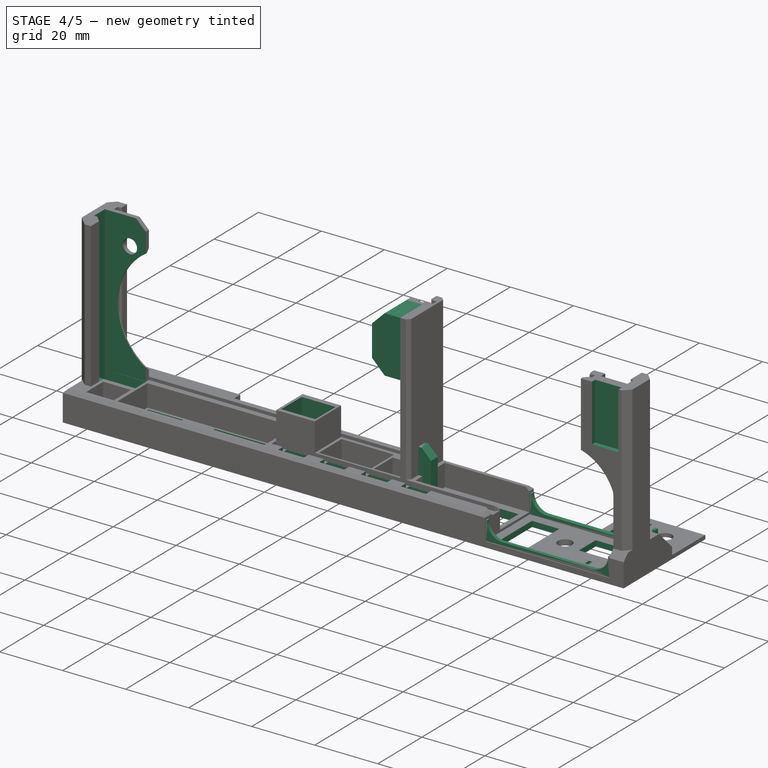
[diagram: stage 4 of 5 — iso view after this stage's code; geometry added in this stage tinted green]
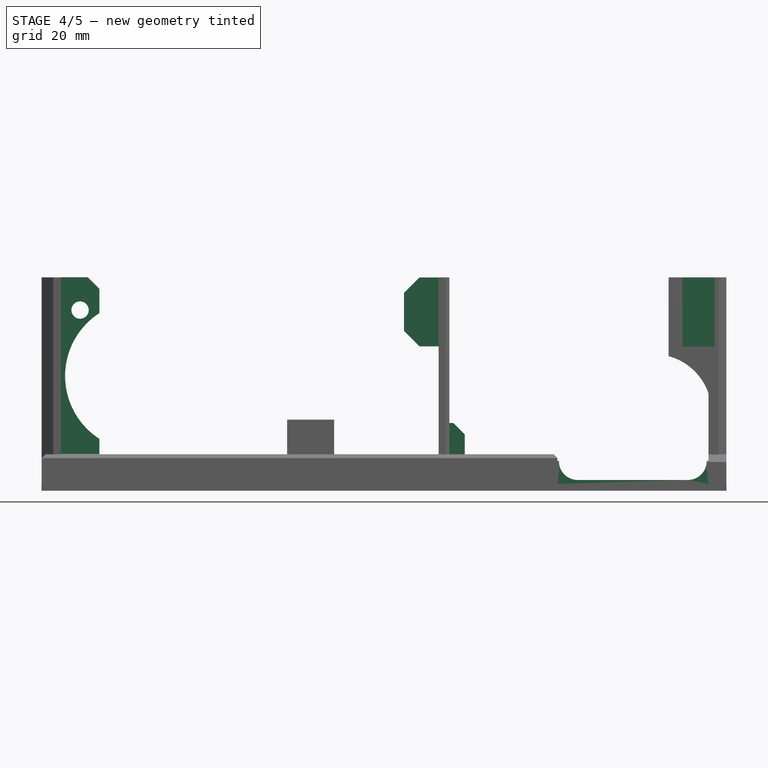
[diagram: stage 4 of 5 — front view after this stage's code; geometry added in this stage tinted green]
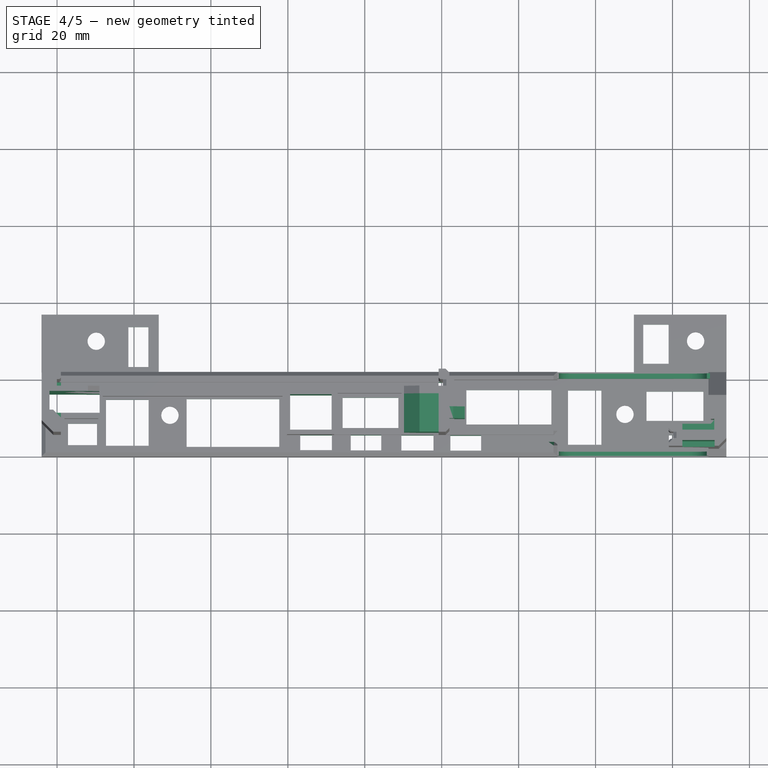
[diagram: stage 4 of 5 — top view after this stage's code; geometry added in this stage tinted green]
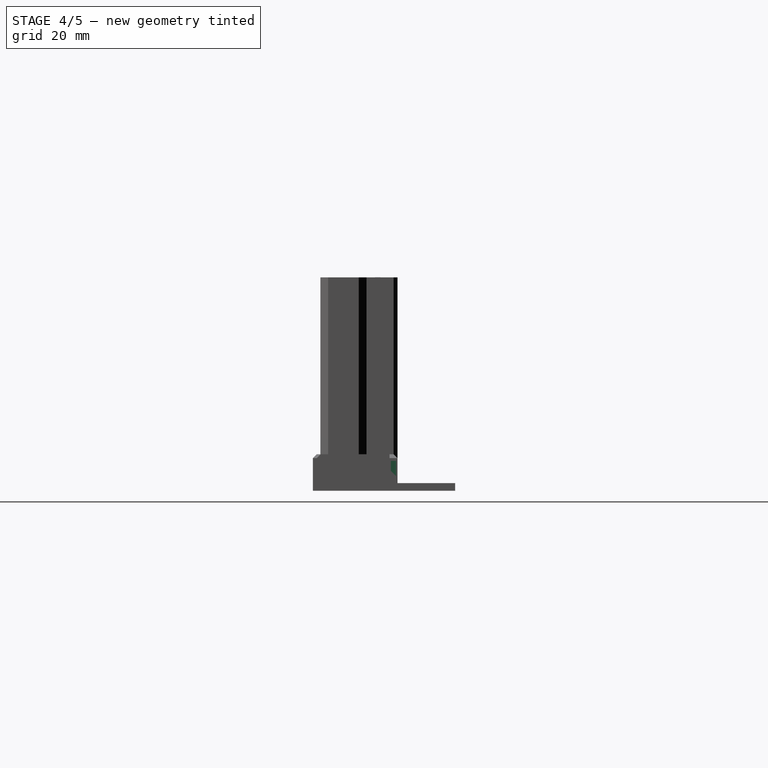
[diagram: stage 4 of 5 — right view after this stage's code; geometry added in this stage tinted green]
FEATURE [Sketcher::SketchObject] Sketch031
  MapMode = 5
  Placement = pos=(0,0,2.5) rot=(0,0,1;0rad)
  Support = -> [Chamfer022]
  sketch-geometry (8):
    g0: LineSegment StartX=130.017 StartY=21.639 StartZ=0 EndX=169.748 EndY=21.639 EndZ=0
    g1: LineSegment StartX=169.748 StartY=21.639 StartZ=0 EndX=169.748 EndY=20.2865 EndZ=0
    g2: LineSegment StartX=169.748 StartY=20.2865 StartZ=0 EndX=130.017 EndY=20.2865 EndZ=0
    g3: LineSegment StartX=130.017 StartY=20.2865 StartZ=0 EndX=130.017 EndY=21.639 EndZ=0
    g4: LineSegment StartX=129.89 StartY=1.30859 StartZ=0 EndX=169.621 EndY=1.30859 EndZ=0
    g5: LineSegment StartX=169.621 StartY=1.30859 StartZ=0 EndX=169.621 EndY=0.251915 EndZ=0
    g6: LineSegment StartX=169.621 StartY=0.251915 StartZ=0 EndX=129.89 EndY=0.251915 EndZ=0
    g7: LineSegment StartX=129.89 StartY=0.251915 StartZ=0 EndX=129.89 EndY=1.30859 EndZ=0
  constraints (16):
    c: Coincident(g0,g1)
    c: Coincident(g1,g2)
    c: Coincident(g2,g3)
    c: Coincident(g3,g0)
    c: Horizontal(g0)
    c: Horizontal(g2)
    c: Vertical(g1)
    c: Vertical(g3)
    c: Coincident(g4,g5)
    c: Coincident(g5,g6)
    c: Coincident(g6,g7)
    c: Coincident(g7,g4)
    c: Horizontal(g4)
    c: Horizontal(g6)
    c: Vertical(g5)
    c: Vertical(g7)
FEATURE [PartDesign::Pad] Pad008
  BaseFeature = -> Chamfer022
  Length = 6
  Length2 = 100
  Profile = -> Sketch031
  Type = 0
FEATURE [Sketcher::SketchObject] Sketch032
  MapMode = 5
  Placement = pos=(11,0,0) rot=(0.57735,0.57735,0.57735;2.0944rad)
  Support = -> [Pad008]
  sketch-geometry (6):
    g0: ArcOfCircle CenterX=135.35 CenterY=7.69416 CenterZ=0 NormalX=0 NormalY=0 NormalZ=1 AngleXU=0 Radius=4.87325 StartAngle=3.13578 EndAngle=4.71239
    g1: LineSegment StartX=135.35 StartY=2.8209 StartZ=0 EndX=164.249 EndY=2.8209 EndZ=0
    g2: ArcOfCircle CenterX=163.965 CenterY=7.75082 CenterZ=0 NormalX=0 NormalY=0 NormalZ=1 AngleXU=0 Radius=4.93805 StartAngle=4.7698 EndAngle=6.28871
    g3: LineSegment StartX=130.476 StartY=7.72249 StartZ=0 EndX=130.42 EndY=9.19578 EndZ=0
    g4: LineSegment StartX=130.42 StartY=9.19578 StartZ=0 EndX=168.903 EndY=9.19578 EndZ=0
    g5: LineSegment StartX=168.903 StartY=9.19578 StartZ=0 EndX=168.903 EndY=7.77811 EndZ=0
  constraints (9):
    c: Coincident(g1,g0)
    c: Horizontal(g1)
    c: Coincident(g2,g1)
    c: Coincident(g3,g0)
    c: Coincident(g4,g3)
    c: Horizontal(g4)
    c: Coincident(g5,g4)
    c: Coincident(g5,g2)
    c: Vertical(g5)
FEATURE [PartDesign::Pocket] Pocket016
  BaseFeature = -> Pad008
  Length = 5
  Length2 = 100
  Profile = -> Sketch032
  Type = 1
FEATURE [Sketcher::SketchObject] Sketch033
  MapMode = 5
  Placement = pos=(102,0,0) rot=(0.57735,0.57735,0.57735;2.0944rad)
  Support = -> [Pocket016]
  sketch-geometry (4):
    g0: LineSegment StartX=9.80745 StartY=17.6371 StartZ=0 EndX=12.8929 EndY=17.6371 EndZ=0
    g1: LineSegment StartX=12.8929 StartY=17.6371 StartZ=0 EndX=12.8929 EndY=1.19522 EndZ=0
    g2: LineSegment StartX=12.8929 StartY=1.19522 StartZ=0 EndX=9.80745 EndY=1.19522 EndZ=0
    g3: LineSegment StartX=9.80745 StartY=1.19522 StartZ=0 EndX=9.80745 EndY=17.6371 EndZ=0
  constraints (8):
    c: Coincident(g0,g1)
    c: Coincident(g1,g2)
    c: Coincident(g2,g3)
    c: Coincident(g3,g0)
    c: Horizontal(g0)
    c: Horizontal(g2)
    c: Vertical(g1)
    c: Vertical(g3)
FEATURE [PartDesign::Pad] Pad009
  BaseFeature = -> Pocket016
  Length = 4
  Length2 = 100
  Profile = -> Sketch033
  Type = 0
FEATURE [PartDesign::Chamfer] Chamfer023
  Base = -> Pad009 [Edge643]
  BaseFeature = -> Pad009
  Size = 3
FEATURE [Sketcher::SketchObject] Sketch034
  MapMode = 5
  Placement = pos=(0,0,55.5) rot=(0,0,1;0rad)
  Support = -> [Chamfer023]
  sketch-geometry (4):
    g0: LineSegment StartX=99.1824 StartY=19.2824 StartZ=0 EndX=100.29 EndY=19.2824 EndZ=0
    g1: LineSegment StartX=100.29 StartY=19.2824 StartZ=0 EndX=100.29 EndY=17.5687 EndZ=0
    g2: LineSegment StartX=100.29 StartY=17.5687 StartZ=0 EndX=99.1824 EndY=17.5687 EndZ=0
    g3: LineSegment StartX=99.1824 StartY=17.5687 StartZ=0 EndX=99.1824 EndY=19.2824 EndZ=0
  constraints (8):
    c: Coincident(g0,g1)
    c: Coincident(g1,g2)
    c: Coincident(g2,g3)
    c: Coincident(g3,g0)
    c: Horizontal(g0)
    c: Horizontal(g2)
    c: Vertical(g1)
    c: Vertical(g3)
FEATURE [PartDesign::Pocket] Pocket017
  BaseFeature = -> Chamfer023
  Length = 60
  Length2 = 100
  Profile = -> Sketch034
  Type = 0
FEATURE [PartDesign::Chamfer] Chamfer024
  Base = -> Pocket017 [Edge104]
  BaseFeature = -> Pocket017
  Size = 0.4
FEATURE [Sketcher::SketchObject] Sketch036
  MapMode = 5
  Placement = pos=(0,0,55.4701) rot=(0,0,1;0rad)
  Support = -> [Chamfer024]
  sketch-geometry (4):
    g0: LineSegment StartX=97.077 StartY=17.6497 StartZ=0 EndX=98.6557 EndY=17.6497 EndZ=0
    g1: LineSegment StartX=98.6557 StartY=17.6497 StartZ=0 EndX=98.6557 EndY=16.8305 EndZ=0
    g2: LineSegment StartX=98.6557 StartY=16.8305 StartZ=0 EndX=97.077 EndY=16.8305 EndZ=0
    g3: LineSegment StartX=97.077 StartY=16.8305 StartZ=0 EndX=97.077 EndY=17.6497 EndZ=0
  constraints (8):
    c: Coincident(g0,g1)
    c: Coincident(g1,g2)
    c: Coincident(g2,g3)
    c: Coincident(g3,g0)
    c: Horizontal(g0)
    c: Horizontal(g2)
    c: Vertical(g1)
    c: Vertical(g3)
FEATURE [PartDesign::Pocket] Pocket018
  BaseFeature = -> Chamfer024
  Length = 25
  Length2 = 100
  Profile = -> Sketch036
  Type = 0
FEATURE [Sketcher::SketchObject] Sketch037
  MapMode = 5
  Placement = pos=(0,0,9.5) rot=(0,0,1;0rad)
  Support = -> [Pocket018]
  sketch-geometry (16):
    g0: LineSegment StartX=63.2268 StartY=5.58215 StartZ=0 EndX=71.4354 EndY=5.58215 EndZ=0
    g1: LineSegment StartX=71.4354 StartY=5.58215 StartZ=0 EndX=71.4354 EndY=1.61561 EndZ=0
    g2: LineSegment StartX=71.4354 StartY=1.61561 StartZ=0 EndX=63.2268 EndY=1.61561 EndZ=0
    g3: LineSegment StartX=63.2268 StartY=1.61561 StartZ=0 EndX=63.2268 EndY=5.58215 EndZ=0
    g4: LineSegment StartX=76.3541 StartY=5.59492 StartZ=0 EndX=84.2849 EndY=5.59492 EndZ=0
    g5: LineSegment StartX=84.2849 StartY=5.59492 StartZ=0 EndX=84.2849 EndY=1.54501 EndZ=0
    g6: LineSegment StartX=84.2849 StartY=1.54501 StartZ=0 EndX=76.3541 EndY=1.54501 EndZ=0
    g7: LineSegment StartX=76.3541 StartY=1.54501 StartZ=0 EndX=76.3541 EndY=5.59492 EndZ=0
    g8: LineSegment StartX=89.5068 StartY=5.55382 StartZ=0 EndX=97.8524 EndY=5.55382 EndZ=0
    g9: LineSegment StartX=97.8524 StartY=5.55382 StartZ=0 EndX=97.8524 EndY=1.53061 EndZ=0
    g10: LineSegment StartX=97.8524 StartY=1.53061 StartZ=0 EndX=89.5068 EndY=1.53061 EndZ=0
    g11: LineSegment StartX=89.5068 StartY=1.53061 StartZ=0 EndX=89.5068 EndY=5.55382 EndZ=0
    g12: LineSegment StartX=102.253 StartY=5.51155 StartZ=0 EndX=110.259 EndY=5.51155 EndZ=0
    g13: LineSegment StartX=110.259 StartY=5.51155 StartZ=0 EndX=110.259 EndY=1.48835 EndZ=0
    g14: LineSegment StartX=110.259 StartY=1.48835 StartZ=0 EndX=102.253 EndY=1.48835 EndZ=0
    g15: LineSegment StartX=102.253 StartY=1.48835 StartZ=0 EndX=102.253 EndY=5.51155 EndZ=0
  constraints (32):
    c: Coincident(g0,g1)
    c: Coincident(g1,g2)
    c: Coincident(g2,g3)
    c: Coincident(g3,g0)
    c: Horizontal(g0)
    c: Horizontal(g2)
    c: Vertical(g1)
    c: Vertical(g3)
    c: Coincident(g4,g5)
    c: Coincident(g5,g6)
    c: Coincident(g6,g7)
    c: Coincident(g7,g4)
    c: Horizontal(g4)
    c: Horizontal(g6)
    c: Vertical(g5)
    c: Vertical(g7)
    c: Coincident(g8,g9)
    c: Coincident(g9,g10)
    c: Coincident(g10,g11)
    c: Coincident(g11,g8)
    c: Horizontal(g8)
    c: Horizontal(g10)
    c: Vertical(g9)
    c: Vertical(g11)
    c: Coincident(g12,g13)
    c: Coincident(g13,g14)
    c: Coincident(g14,g15)
    c: Coincident(g15,g12)
    c: Horizontal(g12)
    c: Horizontal(g14)
    c: Vertical(g13)
    c: Vertical(g15)
FEATURE [PartDesign::Pocket] Pocket019
  BaseFeature = -> Pocket018
  Length = 5
  Length2 = 100
  Profile = -> Sketch037
  Type = 1
FEATURE [Sketcher::SketchObject] Sketch038
  MapMode = 5
  Placement = pos=(0,0,55.5) rot=(0,0,1;0rad)
  Support = -> [Pocket019]
  sketch-geometry (4):
    g0: LineSegment StartX=158.968 StartY=5.62243 StartZ=0 EndX=160.188 EndY=5.62243 EndZ=0
    g1: LineSegment StartX=160.188 StartY=5.62243 StartZ=0 EndX=160.188 EndY=3.88158 EndZ=0
    g2: LineSegment StartX=160.188 StartY=3.88158 StartZ=0 EndX=158.968 EndY=3.88158 EndZ=0
    g3: LineSegment StartX=158.968 StartY=3.88158 StartZ=0 EndX=158.968 EndY=5.62243 EndZ=0
  constraints (8):
    c: Coincident(g0,g1)
    c: Coincident(g1,g2)
    c: Coincident(g2,g3)
    c: Coincident(g3,g0)
    c: Horizontal(g0)
    c: Horizontal(g2)
    c: Vertical(g1)
    c: Vertical(g3)
FEATURE [PartDesign::Pocket] Pocket020
  BaseFeature = -> Pocket019
  Length = 30
  Length2 = 100
  Profile = -> Sketch038
  Type = 0
FEATURE [PartDesign::Chamfer] Chamfer025
  Base = -> Pocket020 [Edge841]
  BaseFeature = -> Pocket020
  Size = 0.4
FEATURE [PartDesign::Chamfer] Chamfer026
  Base = -> Chamfer025 [Edge276]
  BaseFeature = -> Chamfer025
  Size = 1
FEATURE [PartDesign::Chamfer] Chamfer027
  Base = -> Chamfer026 [Edge92]
  BaseFeature = -> Chamfer026
  Size = 1
FEATURE [Sketcher::SketchObject] Sketch039
  MapMode = 5
  Placement = pos=(0,0,9.5) rot=(0,0,1;0rad)
  Support = -> [Chamfer027]
  sketch-geometry (4):
    g0: LineSegment StartX=59.6376 StartY=5.5493 StartZ=0 EndX=133.4 EndY=5.5493 EndZ=0
    g1: LineSegment StartX=133.4 StartY=5.5493 StartZ=0 EndX=133.4 EndY=3.77855 EndZ=0
    g2: LineSegment StartX=133.4 StartY=3.77855 StartZ=0 EndX=59.6376 EndY=3.77855 EndZ=0
    g3: LineSegment StartX=59.6376 StartY=3.77855 StartZ=0 EndX=59.6376 EndY=5.5493 EndZ=0
  constraints (8):
    c: Coincident(g0,g1)
    c: Coincident(g1,g2)
    c: Coincident(g2,g3)
    c: Coincident(g3,g0)
    c: Horizontal(g0)
    c: Horizontal(g2)
    c: Vertical(g1)
    c: Vertical(g3)
FEATURE [PartDesign::Pocket] Pocket021
  BaseFeature = -> Chamfer027
  Length = 1.5
  Length2 = 100
  Profile = -> Sketch039
  Type = 0
FEATURE [Sketcher::SketchObject] Sketch040
  MapMode = 5
  Placement = pos=(0,0,55.5) rot=(0,0,1;0rad)
  Support = -> [Pocket021]
  sketch-geometry (4):
    g0: LineSegment StartX=160.178 StartY=5.62013 StartZ=0 EndX=159.06 EndY=5.62013 EndZ=0
    g1: LineSegment StartX=159.06 StartY=5.62013 StartZ=0 EndX=159.06 EndY=3.76834 EndZ=0
    g2: LineSegment StartX=159.06 StartY=3.76834 StartZ=0 EndX=160.178 EndY=3.76834 EndZ=0
    g3: LineSegment StartX=160.178 StartY=3.76834 StartZ=0 EndX=160.178 EndY=5.62013 EndZ=0
  constraints (8):
    c: Coincident(g0,g1)
    c: Coincident(g1,g2)
    c: Coincident(g2,g3)
    c: Coincident(g3,g0)
    c: Horizontal(g0)
    c: Horizontal(g2)
    c: Vertical(g1)
    c: Vertical(g3)
FEATURE [PartDesign::Pocket] Pocket022
  BaseFeature = -> Pocket021
  Length = 60
  Length2 = 100
  Profile = -> Sketch040
  Type = 0
FEATURE [PartDesign::Chamfer] Chamfer028
  Base = -> Pocket022 [Edge823]
  BaseFeature = -> Pocket022
  Size = 0.4
FEATURE [PartDesign::Chamfer] Chamfer029
  Base = -> Chamfer028 [Edge22,Edge2]
  BaseFeature = -> Chamfer028
  Size = 0.4
FEATURE [PartDesign::Chamfer] Chamfer030
  Base = -> Chamfer029 [Edge100,Edge98]
  BaseFeature = -> Chamfer029
  Size = 0.4
FEATURE [Sketcher::SketchObject] Sketch041
  MapMode = 5
  Placement = pos=(0,15.622,-3.3e-15) rot=(1,0,0;1.5708rad)
  Support = -> [Chamfer030]
  sketch-geometry (6):
    g0: LineSegment StartX=99.2446 StartY=55.4601 StartZ=0 EndX=94.2221 EndY=55.4601 EndZ=0
    g1: LineSegment StartX=94.2221 StartY=55.4601 StartZ=0 EndX=90.2058 EndY=51.4661 EndZ=0
    g2: LineSegment StartX=90.2058 StartY=51.4661 StartZ=0 EndX=90.2058 EndY=41.5998 EndZ=0
    g3: LineSegment StartX=90.2058 StartY=41.5998 StartZ=0 EndX=94.2414 EndY=37.5642 EndZ=0
    g4: LineSegment StartX=94.2414 StartY=37.5642 StartZ=0 EndX=99.2446 EndY=37.5642 EndZ=0
    g5: LineSegment StartX=99.2446 StartY=37.5642 StartZ=0 EndX=99.2446 EndY=55.4601 EndZ=0
  constraints (10):
    c: Horizontal(g0)
    c: Coincident(g1,g0)
    c: Coincident(g2,g1)
    c: Vertical(g2)
    c: Coincident(g3,g2)
    c: Coincident(g4,g3)
    c: Horizontal(g4)
    c: Coincident(g5,g4)
    c: Coincident(g5,g0)
    c: Vertical(g5)
FEATURE [PartDesign::Pad] Pad010
  BaseFeature = -> Chamfer030
  Length = 10
  Length2 = 100
  Profile = -> Sketch041
  Type = 0
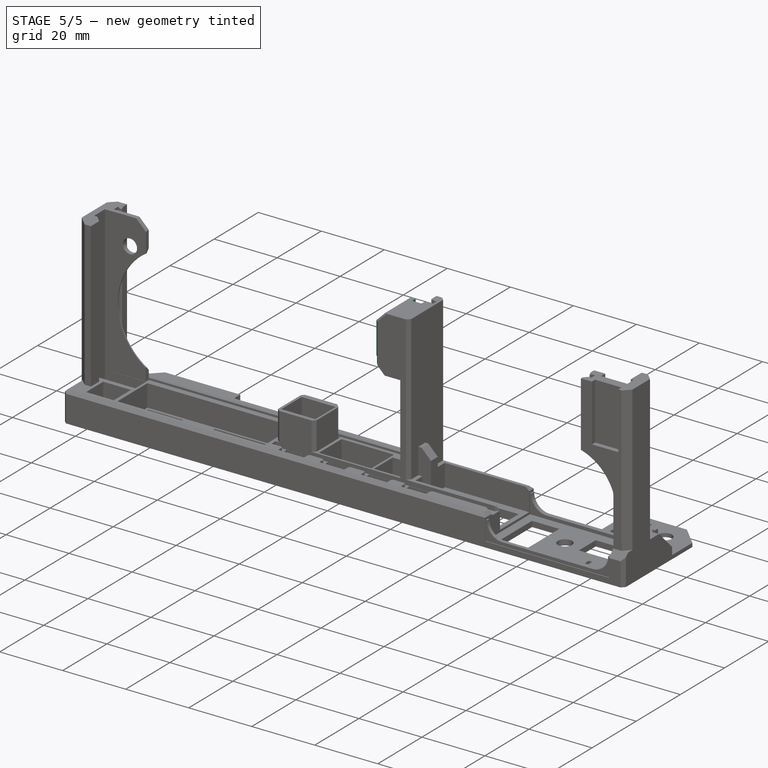
[diagram: stage 5 of 5 — iso view after this stage's code; geometry added in this stage tinted green]
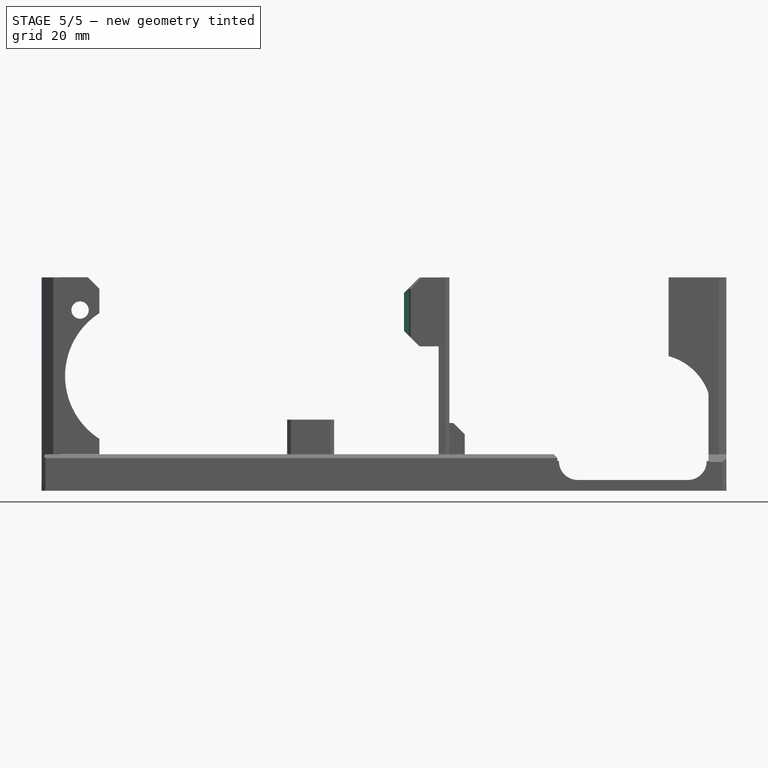
[diagram: stage 5 of 5 — front view after this stage's code; geometry added in this stage tinted green]
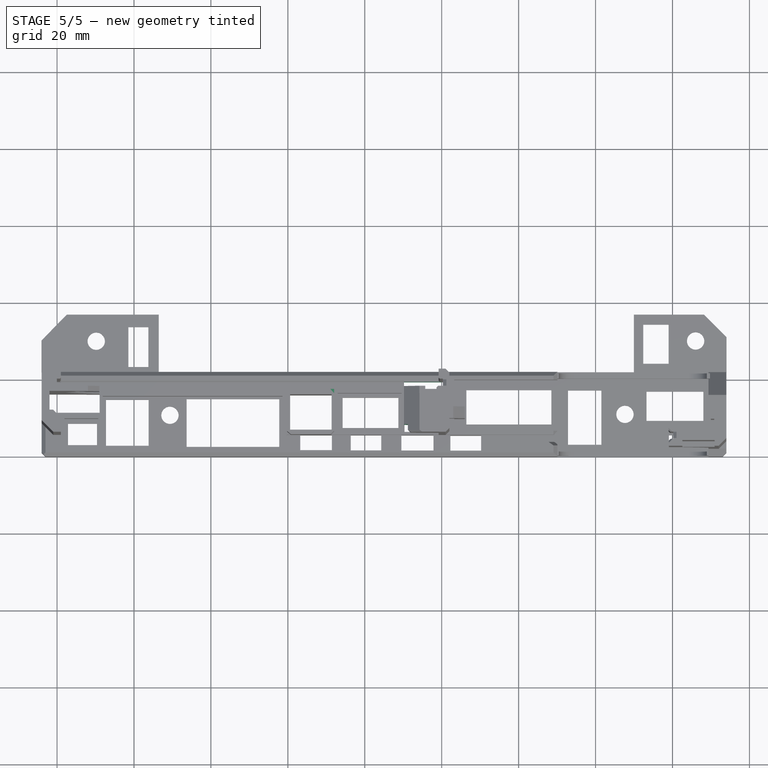
[diagram: stage 5 of 5 — top view after this stage's code; geometry added in this stage tinted green]
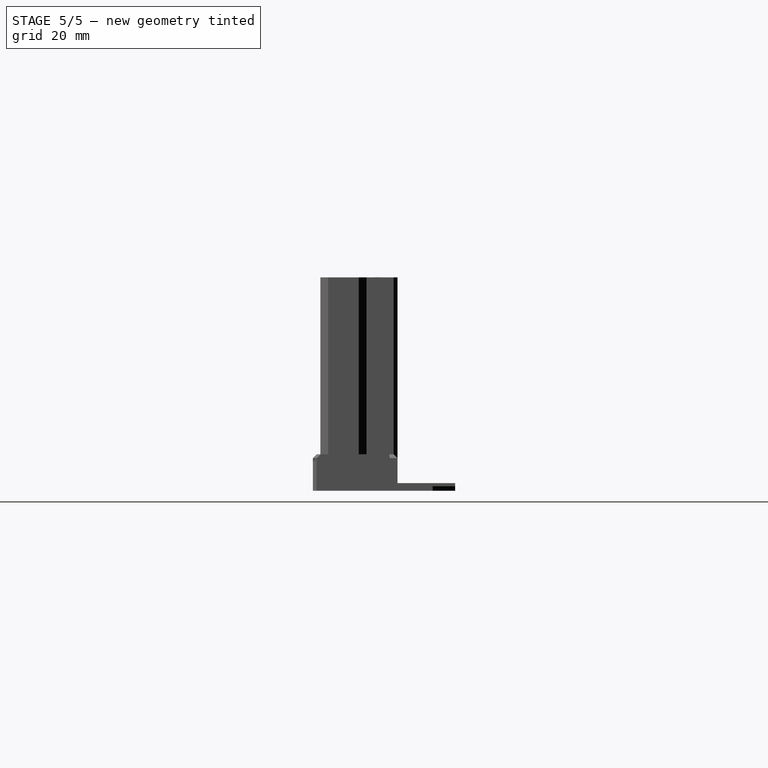
[diagram: stage 5 of 5 — right view after this stage's code; geometry added in this stage tinted green]
FEATURE [Sketcher::SketchObject] Sketch042
  MapMode = 5
  Placement = pos=(0,0,55.5) rot=(0,0,1;0rad)
  Support = -> [Pad010]
  sketch-geometry (4):
    g0: LineSegment StartX=100.3 StartY=17.5637 StartZ=0 EndX=90.2 EndY=17.5637 EndZ=0
    g1: LineSegment StartX=90.2 StartY=17.5637 StartZ=0 EndX=90.2 EndY=19.4 EndZ=0
    g2: LineSegment StartX=90.2 StartY=19.4 StartZ=0 EndX=100.3 EndY=19.4 EndZ=0
    g3: LineSegment StartX=100.3 StartY=19.4 StartZ=0 EndX=100.3 EndY=17.5637 EndZ=0
  constraints (8):
    c: Coincident(g0,g1)
    c: Coincident(g1,g2)
    c: Coincident(g2,g3)
    c: Coincident(g3,g0)
    c: Horizontal(g0)
    c: Horizontal(g2)
    c: Vertical(g1)
    c: Vertical(g3)
FEATURE [PartDesign::Pocket] Pocket023
  BaseFeature = -> Pad010
  Length = 60
  Length2 = 100
  Profile = -> Sketch042
  Type = 0
FEATURE [Sketcher::SketchObject] Sketch043
  MapMode = 5
  Placement = pos=(0,0,55.4701) rot=(0,0,1;0rad)
  Support = -> [Pocket023]
  sketch-geometry (4):
    g0: LineSegment StartX=98.6633 StartY=17.7039 StartZ=0 EndX=95.7098 EndY=17.7039 EndZ=0
    g1: LineSegment StartX=95.7098 StartY=17.7039 StartZ=0 EndX=95.7098 EndY=15.9726 EndZ=0
    g2: LineSegment StartX=95.7098 StartY=15.9726 StartZ=0 EndX=98.6633 EndY=15.9726 EndZ=0
    g3: LineSegment StartX=98.6633 StartY=15.9726 StartZ=0 EndX=98.6633 EndY=17.7039 EndZ=0
  constraints (8):
    c: Coincident(g0,g1)
    c: Coincident(g1,g2)
    c: Coincident(g2,g3)
    c: Coincident(g3,g0)
    c: Horizontal(g0)
    c: Horizontal(g2)
    c: Vertical(g1)
    c: Vertical(g3)
FEATURE [PartDesign::Pocket] Pocket024
  BaseFeature = -> Pocket023
  Length = 20
  Length2 = 100
  Profile = -> Sketch043
  Type = 0
FEATURE [PartDesign::Chamfer] Chamfer031
  Base = -> Pocket024 [Edge663]
  BaseFeature = -> Pocket024
  Size = 0.4
FEATURE [PartDesign::Chamfer] Chamfer032
  Base = -> Chamfer031 [Edge6]
  BaseFeature = -> Chamfer031
  Size = 0.4
FEATURE [Sketcher::SketchObject] Sketch044
  MapMode = 5
  Placement = pos=(0,0,55.5) rot=(0,0,1;0rad)
  Support = -> [Chamfer032]
  sketch-geometry (4):
    g0: LineSegment StartX=-0.060799 StartY=17.5781 StartZ=0 EndX=90.27 EndY=17.5781 EndZ=0
    g1: LineSegment StartX=90.27 StartY=17.5781 StartZ=0 EndX=90.27 EndY=19.4038 EndZ=0
    g2: LineSegment StartX=90.27 StartY=19.4038 StartZ=0 EndX=-0.060799 EndY=19.4038 EndZ=0
    g3: LineSegment StartX=-0.060799 StartY=19.4038 StartZ=0 EndX=-0.060799 EndY=17.5781 EndZ=0
  constraints (8):
    c: Coincident(g0,g1)
    c: Coincident(g1,g2)
    c: Coincident(g2,g3)
    c: Coincident(g3,g0)
    c: Horizontal(g0)
    c: Horizontal(g2)
    c: Vertical(g1)
    c: Vertical(g3)
FEATURE [PartDesign::Pocket] Pocket025
  BaseFeature = -> Chamfer032
  Length = 47.6
  Length2 = 100
  Profile = -> Sketch044
  Type = 0
FEATURE [PartDesign::Chamfer] Chamfer033
  Base = -> Pocket025 [Edge597]
  BaseFeature = -> Pocket025
  Size = 0.4
FEATURE [PartDesign::Chamfer] Chamfer034
  Base = -> Chamfer033 [Edge9]
  BaseFeature = -> Chamfer033
  Size = 0.4
FEATURE [Sketcher::SketchObject] Sketch045
  MapMode = 5
  Placement = pos=(0,0,18.5) rot=(0,0,1;0rad)
  Support = -> [Chamfer034]
  sketch-geometry (12):
    g0: LineSegment StartX=59.789 StartY=5.56479 StartZ=0 EndX=60.8183 EndY=5.56479 EndZ=0
    g1: LineSegment StartX=60.8183 StartY=5.56479 StartZ=0 EndX=59.789 EndY=6.45668 EndZ=0
    g2: LineSegment StartX=59.789 StartY=6.45668 StartZ=0 EndX=59.789 EndY=5.56479 EndZ=0
    g3: LineSegment StartX=59.7949 StartY=17.6208 StartZ=0 EndX=60.665 EndY=17.6208 EndZ=0
    g4: LineSegment StartX=60.665 StartY=17.6208 StartZ=0 EndX=59.7949 EndY=16.8253 EndZ=0
    g5: LineSegment StartX=59.7949 StartY=16.8253 StartZ=0 EndX=59.7949 EndY=17.6208 EndZ=0
    g6: LineSegment StartX=72.0715 StartY=17.6152 StartZ=0 EndX=72.0715 EndY=16.2584 EndZ=0
    g7: LineSegment StartX=72.0715 StartY=16.2584 StartZ=0 EndX=70.817 EndY=17.6152 EndZ=0
    g8: LineSegment StartX=70.817 StartY=17.6152 StartZ=0 EndX=72.0715 EndY=17.6152 EndZ=0
    g9: LineSegment StartX=72.0688 StartY=5.55527 StartZ=0 EndX=71.0703 EndY=5.55527 EndZ=0
    g10: LineSegment StartX=71.0703 StartY=5.55527 StartZ=0 EndX=72.0688 EndY=6.50251 EndZ=0
    g11: LineSegment StartX=72.0688 StartY=6.50251 StartZ=0 EndX=72.0688 EndY=5.55527 EndZ=0
  constraints (20):
    c: Horizontal(g0)
    c: Coincident(g0,g1)
    c: Coincident(g1,g2)
    c: Coincident(g2,g0)
    c: Vertical(g2)
    c: Horizontal(g3)
    c: Coincident(g3,g4)
    c: Coincident(g4,g5)
    c: Coincident(g5,g3)
    c: Vertical(g5)
    c: Vertical(g6)
    c: Coincident(g6,g7)
    c: Coincident(g7,g8)
    c: Coincident(g8,g6)
    c: Horizontal(g8)
    c: Horizontal(g9)
    c: Coincident(g9,g10)
    c: Coincident(g10,g11)
    c: Coincident(g11,g9)
    c: Vertical(g11)
FEATURE [PartDesign::Pocket] Pocket026
  BaseFeature = -> Chamfer034
  Length = 9
  Length2 = 100
  Profile = -> Sketch045
  Type = 0
FEATURE [PartDesign::Chamfer] Chamfer035
  Base = -> Pocket026 [Edge470,Edge487,Edge501,Edge515]
  BaseFeature = -> Pocket026
  Size = 0.5
FEATURE [PartDesign::Chamfer] Chamfer036
  Base = -> Chamfer035 [Edge76,Edge74,Edge113,Edge141]
  BaseFeature = -> Chamfer035
  Size = 0.5
FEATURE [Sketcher::SketchObject] Sketch046
  MapMode = 5
  Placement = pos=(-5e-16,5.62204,-1.1e-15) rot=(1,0,0;1.5708rad)
  Support = -> [Chamfer036]
  sketch-geometry (4):
    g0: LineSegment StartX=90.0071 StartY=52.4648 StartZ=0 EndX=91.4504 EndY=52.4648 EndZ=0
    g1: LineSegment StartX=91.4504 StartY=52.4648 StartZ=0 EndX=91.4504 EndY=39.7402 EndZ=0
    g2: LineSegment StartX=91.4504 StartY=39.7402 StartZ=0 EndX=90.0071 EndY=39.7402 EndZ=0
    g3: LineSegment StartX=90.0071 StartY=39.7402 StartZ=0 EndX=90.0071 EndY=52.4648 EndZ=0
  constraints (8):
    c: Coincident(g0,g1)
    c: Coincident(g1,g2)
    c: Coincident(g2,g3)
    c: Coincident(g3,g0)
    c: Horizontal(g0)
    c: Horizontal(g2)
    c: Vertical(g1)
    c: Vertical(g3)
FEATURE [PartDesign::Pocket] Pocket027
  BaseFeature = -> Chamfer036
  Length = 2
  Length2 = 100
  Profile = -> Sketch046
  Type = 0
FEATURE [PartDesign::Chamfer] Chamfer037
  Base = -> Pocket027 [Edge857]
  BaseFeature = -> Pocket027
  Size = 0.5
FEATURE [PartDesign::Chamfer] Chamfer038
  Base = -> Chamfer037 [Edge8]
  BaseFeature = -> Chamfer037
  Size = 0.5
FEATURE [Sketcher::SketchObject] Sketch047
  MapMode = 5
  Placement = pos=(0,4e-16,1.99072) rot=(0,0,1;0rad)
  Support = -> [Chamfer038]
  sketch-geometry (3):
    g0: LineSegment StartX=-4.31216 StartY=37.4638 StartZ=0 EndX=3 EndY=37.4638 EndZ=0
    g1: LineSegment StartX=3 StartY=37.4638 StartZ=0 EndX=-4.31216 EndY=30 EndZ=0
    g2: LineSegment StartX=-4.31216 StartY=30 StartZ=0 EndX=-4.31216 EndY=37.4638 EndZ=0
  constraints (5):
    c: Horizontal(g0)
    c: Coincident(g0,g1)
    c: Coincident(g1,g2)
    c: Coincident(g2,g0)
    c: Vertical(g2)
FEATURE [PartDesign::Pocket] Pocket028
  BaseFeature = -> Chamfer038
  Length = 5
  Length2 = 100
  Profile = -> Sketch047
  Type = 0
FEATURE [Sketcher::SketchObject] Sketch048
  MapMode = 5
  Placement = pos=(0,3e-16,1.18861) rot=(0,0,1;0rad)
  Support = -> [Pocket028]
  sketch-geometry (3):
    g0: LineSegment StartX=174.126 StartY=37.0452 StartZ=0 EndX=168.13 EndY=37.0452 EndZ=0
    g1: LineSegment StartX=168.13 StartY=37.0452 StartZ=0 EndX=174.126 EndY=31.0363 EndZ=0
    g2: LineSegment StartX=174.126 StartY=31.0363 StartZ=0 EndX=174.126 EndY=37.0452 EndZ=0
  constraints (5):
    c: Horizontal(g0)
    c: Coincident(g0,g1)
    c: Coincident(g1,g2)
    c: Coincident(g2,g0)
    c: Vertical(g2)
FEATURE [PartDesign::Pocket] Pocket029
  BaseFeature = -> Pocket028
  Length = 5
  Length2 = 100
  Profile = -> Sketch048
  Type = 0
FEATURE [PartDesign::Chamfer] Chamfer039
  Base = -> Pocket029 [Edge467]
  BaseFeature = -> Pocket029
  Size = 1
FEATURE [PartDesign::Chamfer] Chamfer040
  Base = -> Chamfer039 [Edge81]
  BaseFeature = -> Chamfer039
  Size = 1
FEATURE [PartDesign::Body] Body
  Group = -> [Sketch,Pad,Sketch001,Pocket,Sketch002,Pad001,Sketch003,Pad002,Sketch004,Pad003,Sketch005,Pad004,Sketch006,Pad005,Sketch007,Pocket001,Sketch008,Pad006,Sketch009,Pocket002,Sketch010,Pad007,Sketch011,Pocket003,Sketch013,Hole001,Sketch014,Hole,Sketch015,Pocket004,Chamfer,Chamfer001,Chamfer002,Chamfer003,Chamfer004,Chamfer005,Chamfer006,Chamfer007,Chamfer008,Chamfer009,Chamfer010,Chamfer011,Chamfer012,+90 more]
  Origin = -> Origin
  Tip = -> Chamfer040
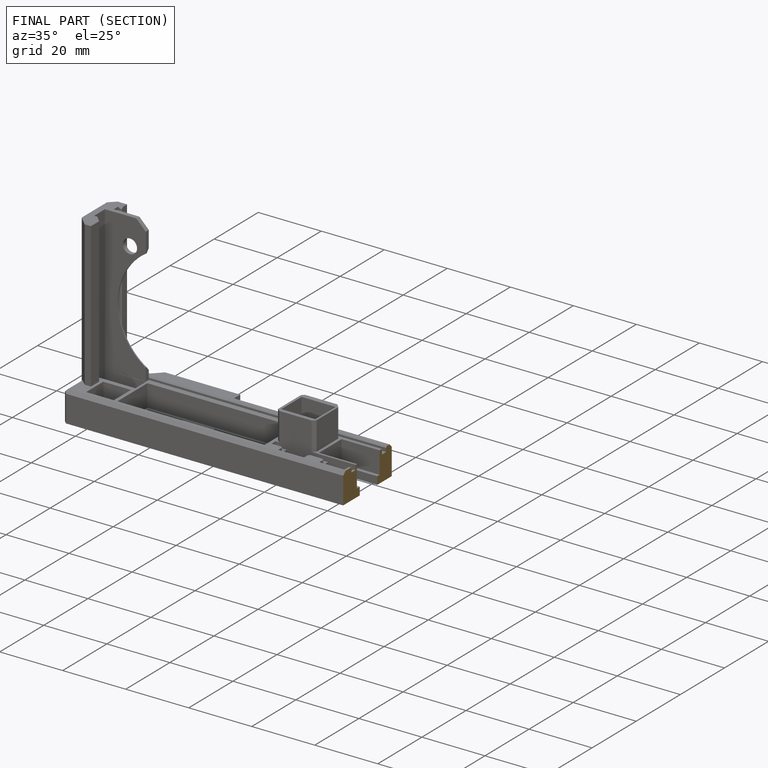
[diagram: finished part — half-section view (interior)]
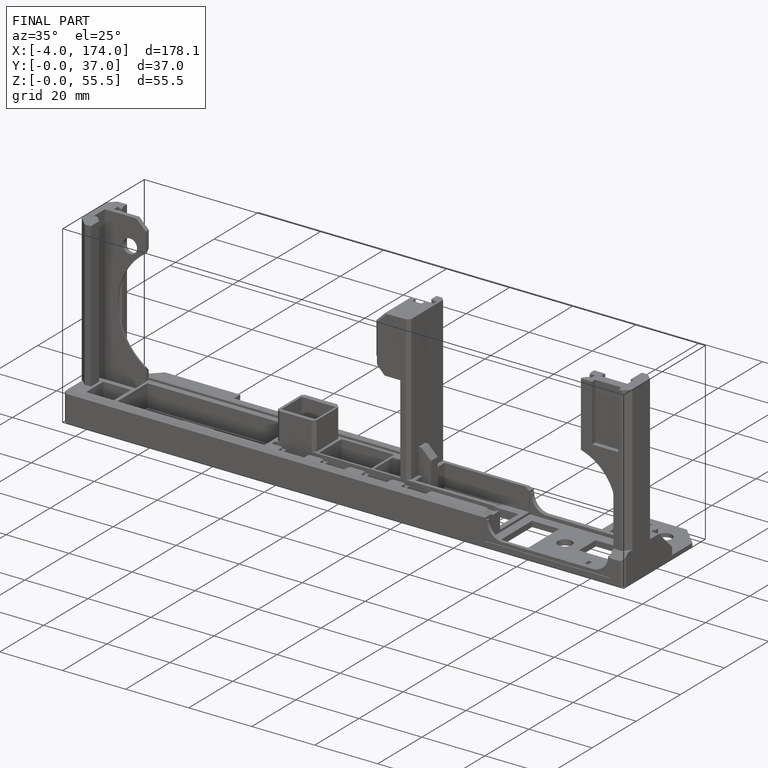
[diagram: finished part — iso view with bounding-box wireframe]
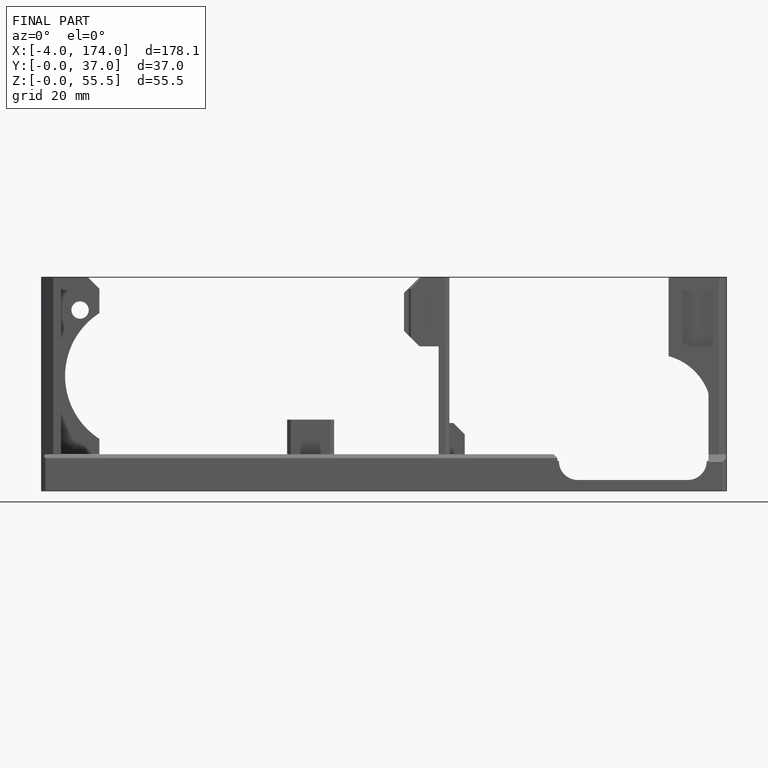
[diagram: finished part — front view with bounding-box wireframe]
